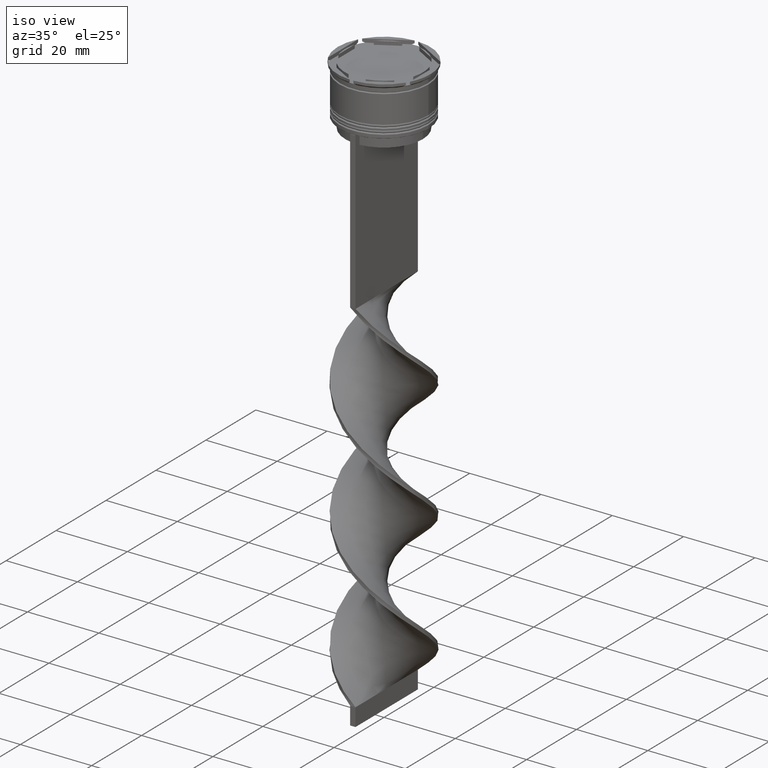
[diagram: clean part render]
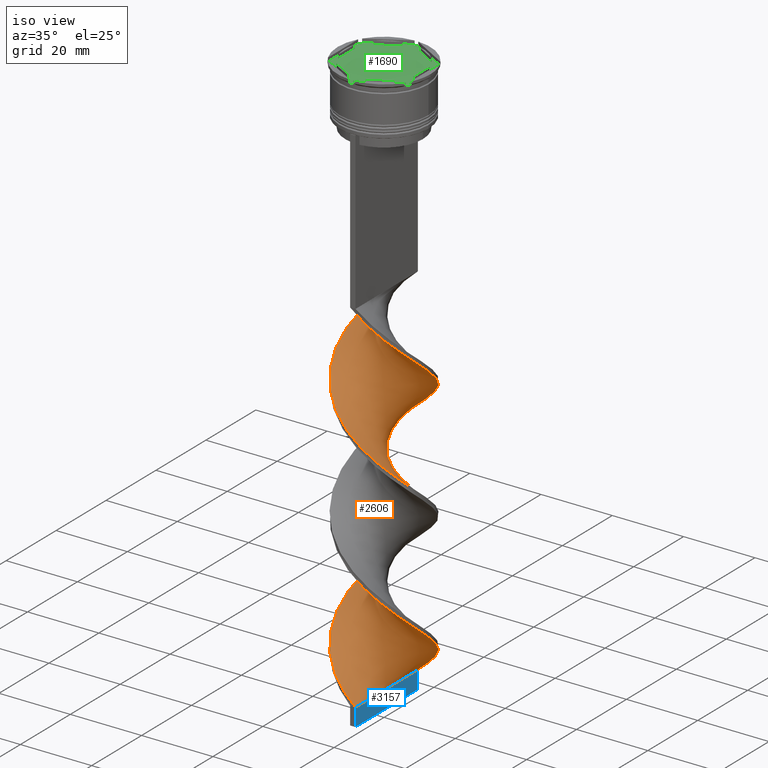
[diagram: same view with three faces highlighted in distinct colors, each labeled with its STEP entity id]
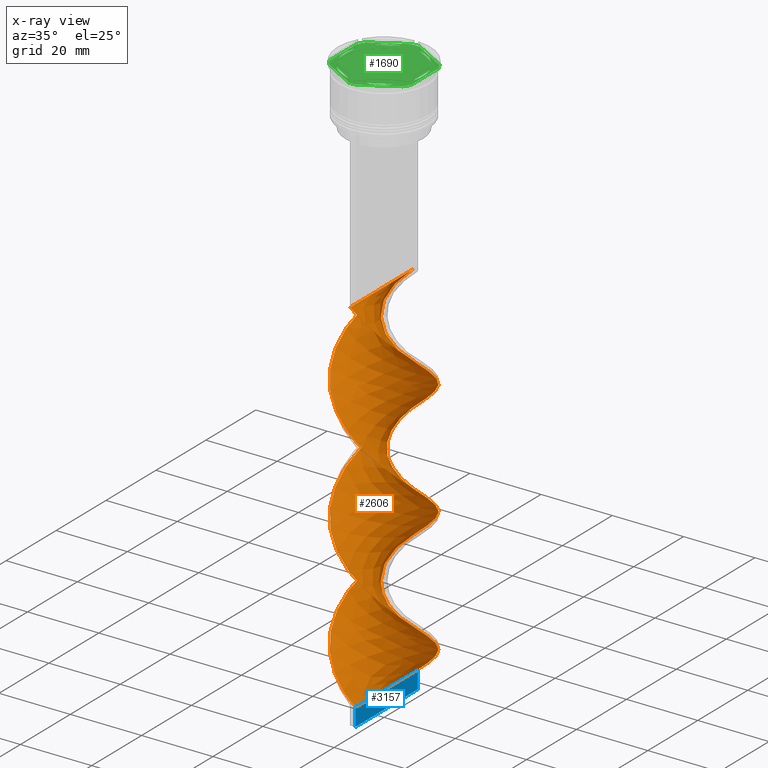
[diagram: x-ray of the same camera — body ghosted, the three highlighted faces saturated]
A machine part, iso view with three faces highlighted in distinct colors.
The next image is the same camera in x-ray (body ghosted, the three faces saturated) — at least one of them is partly hidden behind the body in this view.
Their STEP definitions:

[orange] entity #2606 — the highlighted face is a freeform B-spline surface patch.
#12 = CARTESIAN_POINT ( 'NONE',  ( 10.61168328023406637, 6.777681757703949650, -81.56666666666664867 ) ) ;
#15 = LINE ( 'NONE', #1223, #2618 ) ;
#21 = CARTESIAN_POINT ( 'NONE',  ( 3.332506835772350406, 12.07091124105925140, -89.42222222222223138 ) ) ;
#30 = CARTESIAN_POINT ( 'NONE',  ( 12.11996919947063134, -3.149420042465480130, -105.1333333333333400 ) ) ;
#39 = CARTESIAN_POINT ( 'NONE',  ( 3.166767928522319586, -12.18672937812252499, -61.36666666666666003 ) ) ;
#51 = CARTESIAN_POINT ( 'NONE',  ( 12.45098658456436169, -1.875559948311570357, -106.2555555555555742 ) ) ;
#59 = CARTESIAN_POINT ( 'NONE',  ( 9.791158273236575837, 7.806773960377678456, -150.0222222222222115 ) ) ;
#67 = CARTESIAN_POINT ( 'NONE',  ( 12.45098658456436169, -1.875559948311570135, -106.2555555555555742 ) ) ;
#69 = CARTESIAN_POINT ( 'NONE',  ( -12.11996919947063134, 3.149420042465478353, -138.8000000000000114 ) ) ;
#78 = CARTESIAN_POINT ( 'NONE',  ( 11.65644370790820794, -4.576004816908208817, -138.8000000000000114 ) ) ;
#90 = VERTEX_POINT ( 'NONE', #2614 ) ;
#93 = CARTESIAN_POINT ( 'NONE',  ( 9.725148873555950146, 7.997891686931350996, -115.2333333333333343 ) ) ;
#96 = CARTESIAN_POINT ( 'NONE',  ( -0.5638029408209594973, -12.57882817644925844, -157.8777777777777942 ) ) ;
#104 = CARTESIAN_POINT ( 'NONE',  ( -11.78895181437690454, -4.423280136619386127, -112.9888888888888943 ) ) ;
#116 = CARTESIAN_POINT ( 'NONE',  ( -12.11996919947063134, 3.149420042465478353, -138.8000000000000114 ) ) ;
#123 = CARTESIAN_POINT ( 'NONE',  ( 9.725148873555946594, -7.997891686931353661, -135.4333333333333371 ) ) ;
#128 = CARTESIAN_POINT ( 'NONE',  ( 10.45031754730548279, -6.899519052838330779, -136.5555555555555713 ) ) ;
#134 = CARTESIAN_POINT ( 'NONE',  ( 1.865285434671644538, 12.38277877728589083, -123.0888888888888886 ) ) ;
#142 = CARTESIAN_POINT ( 'NONE',  ( -7.849775853840625039, -9.845090710256194200, -83.81111111111111711 ) ) ;
#147 = CARTESIAN_POINT ( 'NONE',  ( 6.937523532635174739, 10.50788081788355832, -153.3888888888889142 ) ) ;
#154 = CARTESIAN_POINT ( 'NONE',  ( -9.725148873555948370, -7.997891686931350996, -148.8999999999999488 ) ) ;
#166 = VERTEX_POINT ( 'NONE', #186 ) ;
#186 = CARTESIAN_POINT ( 'NONE',  ( 0.7500000000000013323, 12.50000000000000000, -159.0000000000000000 ) ) ;
#259 = CARTESIAN_POINT ( 'NONE',  ( -12.50992003955415832, -0.5607143693194575063, -109.6222222222222342 ) ) ;
#264 = CARTESIAN_POINT ( 'NONE',  ( -12.45098658456436169, -1.875559948311554592, -110.7444444444444542 ) ) ;
#265 = ORIENTED_EDGE ( 'NONE', *, *, #1068, .F. ) ;
#271 = CARTESIAN_POINT ( 'NONE',  ( -8.787462363698287149, -8.921491198593770378, -82.68888888888889710 ) ) ;
#279 = CARTESIAN_POINT ( 'NONE',  ( 0.7500000000000013323, 12.50000000000000000, -91.66666666666667140 ) ) ;
#287 = CARTESIAN_POINT ( 'NONE',  ( 2.063802940820959275, 12.42117182355074334, -90.54444444444445139 ) ) ;
#295 = CARTESIAN_POINT ( 'NONE',  ( 6.937523532635167633, -10.50788081788356543, -97.27777777777779988 ) ) ;
#304 = CARTESIAN_POINT ( 'NONE',  ( -10.45031754730548101, 6.899519052838334332, -102.8888888888888857 ) ) ;
#309 = CARTESIAN_POINT ( 'NONE',  ( -12.50992003955415832, -0.5607143693194575063, -109.6222222222222342 ) ) ;
#316 = CARTESIAN_POINT ( 'NONE',  ( -12.11996919947063134, 3.149420042465478353, -71.46666666666668277 ) ) ;
#324 = CARTESIAN_POINT ( 'NONE',  ( 3.332506835772350406, 12.07091124105925140, -89.42222222222223138 ) ) ;
#330 = CARTESIAN_POINT ( 'NONE',  ( 11.17548622105502076, -5.801146418745307898, -70.34444444444444855 ) ) ;
#335 = CARTESIAN_POINT ( 'NONE',  ( -5.631329961908789983, -11.26201202755619946, -153.3888888888889142 ) ) ;
#342 = CARTESIAN_POINT ( 'NONE',  ( 11.65644370790820794, -4.576004816908208817, -71.46666666666668277 ) ) ;
#350 = CARTESIAN_POINT ( 'NONE',  ( 0.7500000000000013323, 12.50000000000000000, -91.66666666666667140 ) ) ;
#357 = EDGE_CURVE ( 'NONE', #1228, #3834, #15, .T. ) ;
#359 = CARTESIAN_POINT ( 'NONE',  ( 11.17548622105502254, 5.801146418745299904, -112.9888888888888943 ) ) ;
#368 = CARTESIAN_POINT ( 'NONE',  ( 0.7500000000000013323, 12.50000000000000000, -159.0000000000000000 ) ) ;
#373 = CARTESIAN_POINT ( 'NONE',  ( 4.601210730723738429, 11.72065065856775767, -155.6333333333333542 ) ) ;
#378 = CARTESIAN_POINT ( 'NONE',  ( 10.61168328023406637, -6.777681757703953203, -101.7666666666666515 ) ) ;
#388 = CARTESIAN_POINT ( 'NONE',  ( 10.45031754730548279, -6.899519052838330779, -136.5555555555555713 ) ) ;
#393 = CARTESIAN_POINT ( 'NONE',  ( 4.399048945215551676, -11.72437070283936222, -129.8222222222222229 ) ) ;
#398 = CARTESIAN_POINT ( 'NONE',  ( -12.45098658456435992, 1.875559948311566361, -139.9222222222222172 ) ) ;
#399 = CARTESIAN_POINT ( 'NONE',  ( -10.61168328023406637, 6.777681757703951426, -135.4333333333333371 ) ) ;
#407 = CARTESIAN_POINT ( 'NONE',  ( -9.791158273236570508, 7.806773960377682897, -66.97777777777777430 ) ) ;
#412 = CARTESIAN_POINT ( 'NONE',  ( 7.954078399437126023, 9.671873490467488566, -152.2666666666666799 ) ) ;
#419 = CARTESIAN_POINT ( 'NONE',  ( 12.11996919947063134, -3.149420042465480130, -105.1333333333333400 ) ) ;
#432 = CARTESIAN_POINT ( 'NONE',  ( -6.937523532635171186, 10.50788081788356187, -63.61111111111111427 ) ) ;
#443 = CARTESIAN_POINT ( 'NONE',  ( -4.399048945215555229, -11.72437070283936045, -154.5111111111111200 ) ) ;
#451 = CARTESIAN_POINT ( 'NONE',  ( -4.601210730723740205, -11.72065065856775945, -121.9666666666666544 ) ) ;
#454 = B_SPLINE_CURVE_WITH_KNOTS ( 'NONE', 3,
 ( #3863, #3545, #1638, #1659 ),
 .UNSPECIFIED., .F., .F.,
 ( 4, 4 ),
 ( 0.000000000000000000, 1.000000000000000000 ),
 .UNSPECIFIED. ) ;
#461 = CARTESIAN_POINT ( 'NONE',  ( -12.35312734465267859, -2.052497212371871438, -143.2888888888889198 ) ) ;
#586 = CARTESIAN_POINT ( 'NONE',  ( -12.50992003955415655, 0.5607143693194662770, -73.71111111111112280 ) ) ;
#593 = CARTESIAN_POINT ( 'NONE',  ( 6.740552907874703514, -10.55355136890619860, -64.73333333333333428 ) ) ;
#598 = CARTESIAN_POINT ( 'NONE',  ( 9.791158273236575837, 7.806773960377678456, -82.68888888888889710 ) ) ;
#600 = CARTESIAN_POINT ( 'NONE',  ( -0.7499999999999997780, 12.50000000000000000, -58.00000000000000000 ) ) ;
#608 = CARTESIAN_POINT ( 'NONE',  ( -6.740552907874705291, -10.55355136890619683, -84.93333333333333712 ) ) ;
#616 = CARTESIAN_POINT ( 'NONE',  ( 12.13740119476140045, -3.350863215071111068, -72.58888888888890278 ) ) ;
#624 = CARTESIAN_POINT ( 'NONE',  ( -10.45031754730548101, 6.899519052838334332, -102.8888888888888857 ) ) ;
#633 = CARTESIAN_POINT ( 'NONE',  ( -10.61168328023406637, 6.777681757703951426, -68.10000000000000853 ) ) ;
#640 = CARTESIAN_POINT ( 'NONE',  ( 4.399048945215551676, -11.72437070283936222, -62.48888888888889426 ) ) ;
#645 = CARTESIAN_POINT ( 'NONE',  ( 12.56885349454395495, -0.7541312096726379144, -74.83333333333332860 ) ) ;
#652 = CARTESIAN_POINT ( 'NONE',  ( 0.5638029408209667137, 12.57882817644925844, -124.2111111111111370 ) ) ;
#661 = CARTESIAN_POINT ( 'NONE',  ( 11.78895181437690276, 4.423280136619390568, -79.32222222222222285 ) ) ;
#666 = CARTESIAN_POINT ( 'NONE',  ( -11.20031754730548634, -5.600480947161663003, -114.1111111111111285 ) ) ;
#672 = CARTESIAN_POINT ( 'NONE',  ( -6.740552907874705291, -10.55355136890619683, -152.2666666666666799 ) ) ;
#679 = CARTESIAN_POINT ( 'NONE',  ( -9.791158273236577614, -7.806773960377676680, -116.3555555555555685 ) ) ;
#696 = CARTESIAN_POINT ( 'NONE',  ( -11.20031754730548279, 5.600480947161673662, -136.5555555555555713 ) ) ;
#705 = CARTESIAN_POINT ( 'NONE',  ( -12.13740119476140045, -3.350863215071107515, -77.07777777777778283 ) ) ;
#711 = CARTESIAN_POINT ( 'NONE',  ( 2.063802940820959275, 12.42117182355074334, -157.8777777777777942 ) ) ;
#717 = CARTESIAN_POINT ( 'NONE',  ( 4.399048945215562334, 11.72437070283935689, -120.8444444444444485 ) ) ;
#718 = CARTESIAN_POINT ( 'NONE',  ( 12.50992003955415832, -0.5607143693194732714, -107.3777777777777942 ) ) ;
#725 = CARTESIAN_POINT ( 'NONE',  ( -7.954078399437124247, 9.671873490467490342, -64.73333333333333428 ) ) ;
#729 = CARTESIAN_POINT ( 'NONE',  ( 11.17548622105502076, -5.801146418745307898, -137.6777777777777487 ) ) ;
#734 = CARTESIAN_POINT ( 'NONE',  ( -3.166767928522321363, -12.18672937812252499, -155.6333333333333258 ) ) ;
#745 = CARTESIAN_POINT ( 'NONE',  ( -12.56885349454395495, -0.7541312096726363601, -74.83333333333334281 ) ) ;
#756 = CARTESIAN_POINT ( 'NONE',  ( -3.332506835772345077, 12.07091124105925317, -127.5777777777777828 ) ) ;
#769 = CARTESIAN_POINT ( 'NONE',  ( 5.631329961908785542, -11.26201202755620123, -130.9444444444444287 ) ) ;
#774 = CARTESIAN_POINT ( 'NONE',  ( 0.7500000000000013323, 12.50000000000000000, -159.0000000000000000 ) ) ;
#779 = CARTESIAN_POINT ( 'NONE',  ( 4.601210730723735765, -11.72065065856776123, -95.03333333333331723 ) ) ;
#795 = CARTESIAN_POINT ( 'NONE',  ( -11.78895181437690276, 4.423280136619394121, -137.6777777777777487 ) ) ;
#818 = CARTESIAN_POINT ( 'NONE',  ( -6.937523532635170298, 10.50788081788356187, -63.61111111111112137 ) ) ;
#854 = CARTESIAN_POINT ( 'NONE',  ( -0.7499999999999997780, 12.50000000000000000, -58.00000000000000000 ) ) ;
#887 = CARTESIAN_POINT ( 'NONE',  ( -7.849775853840618822, 9.845090710256195976, -99.52222222222223991 ) ) ;
#894 = CARTESIAN_POINT ( 'NONE',  ( 10.45031754730548279, -6.899519052838330779, -69.22222222222222854 ) ) ;
#900 = CARTESIAN_POINT ( 'NONE',  ( -11.65644370790820972, -4.576004816908207040, -78.20000000000000284 ) ) ;
#912 = CARTESIAN_POINT ( 'NONE',  ( 12.50992003955415832, 0.5607143693194618361, -75.95555555555554861 ) ) ;
#919 = CARTESIAN_POINT ( 'NONE',  ( -4.399048945215555229, -11.72437070283936045, -87.17777777777779136 ) ) ;
#931 = CARTESIAN_POINT ( 'NONE',  ( 11.20031754730548457, 5.600480947161669221, -80.44444444444445708 ) ) ;
#939 = CARTESIAN_POINT ( 'NONE',  ( -1.865285434671642761, -12.38277877728589083, -89.42222222222223138 ) ) ;
#946 = CARTESIAN_POINT ( 'NONE',  ( 9.791158273236575837, 7.806773960377678456, -82.68888888888889710 ) ) ;
#954 = CARTESIAN_POINT ( 'NONE',  ( 4.601210730723738429, 11.72065065856775767, -88.29999999999998295 ) ) ;
#966 = CARTESIAN_POINT ( 'NONE',  ( -7.954078399437124247, 9.671873490467490342, -132.0666666666666629 ) ) ;
#974 = CARTESIAN_POINT ( 'NONE',  ( -1.865285434671634324, 12.38277877728589260, -93.91111111111111143 ) ) ;
#980 = CARTESIAN_POINT ( 'NONE',  ( -11.17548622105501721, 5.801146418745314115, -104.0111111111111057 ) ) ;
#995 = CARTESIAN_POINT ( 'NONE',  ( -5.769367131679462801, -11.11426573822565622, -120.8444444444444485 ) ) ;
#1001 = CARTESIAN_POINT ( 'NONE',  ( 11.20031754730548457, 5.600480947161669221, -147.7777777777777715 ) ) ;
#1006 = CARTESIAN_POINT ( 'NONE',  ( -11.78895181437690276, 4.423280136619393232, -137.6777777777777487 ) ) ;
#1016 = CARTESIAN_POINT ( 'NONE',  ( 12.35312734465267681, -2.052497212371875435, -141.0444444444444514 ) ) ;
#1029 = CARTESIAN_POINT ( 'NONE',  ( -6.937523532635171186, 10.50788081788356187, -130.9444444444444287 ) ) ;
#1031 = CARTESIAN_POINT ( 'NONE',  ( -12.13740119476140045, -3.350863215071107515, -144.4111111111111256 ) ) ;
#1040 = CARTESIAN_POINT ( 'NONE',  ( 7.849775853840622375, -9.845090710256195976, -133.1888888888889255 ) ) ;
#1045 = CARTESIAN_POINT ( 'NONE',  ( 8.970633266239079973, 8.835866163051411704, -151.1444444444444457 ) ) ;
#1051 = CARTESIAN_POINT ( 'NONE',  ( -9.791158273236570508, 7.806773960377682897, -134.3111111111111313 ) ) ;
#1053 = CARTESIAN_POINT ( 'NONE',  ( -7.849775853840625039, -9.845090710256192423, -151.1444444444444457 ) ) ;
#1059 = CARTESIAN_POINT ( 'NONE',  ( 11.20031754730548457, 5.600480947161669221, -147.7777777777777715 ) ) ;
#1062 = CARTESIAN_POINT ( 'NONE',  ( 9.791158273236575837, 7.806773960377678456, -150.0222222222222115 ) ) ;
#1067 = CARTESIAN_POINT ( 'NONE',  ( 11.78895181437689743, -4.423280136619401226, -104.0111111111111200 ) ) ;
#1068 = EDGE_CURVE ( 'NONE', #166, #90, #454, .T. ) ;
#1076 = CARTESIAN_POINT ( 'NONE',  ( 3.332506835772350406, 12.07091124105925140, -156.7555555555555600 ) ) ;
#1081 = CARTESIAN_POINT ( 'NONE',  ( 10.61168328023406460, 6.777681757703949650, -148.8999999999999773 ) ) ;
#1089 = CARTESIAN_POINT ( 'NONE',  ( -4.399048945215555229, -11.72437070283936045, -87.17777777777779136 ) ) ;
#1100 = CARTESIAN_POINT ( 'NONE',  ( -6.740552907874705291, -10.55355136890619683, -84.93333333333333712 ) ) ;
#1113 = CARTESIAN_POINT ( 'NONE',  ( -11.20031754730548279, 5.600480947161673662, -136.5555555555555713 ) ) ;
#1127 = CARTESIAN_POINT ( 'NONE',  ( 0.7499999999999983347, -12.50000000000000000, -159.0000000000000000 ) ) ;
#1132 = CARTESIAN_POINT ( 'NONE',  ( -5.769367131679452143, 11.11426573822566155, -62.48888888888889426 ) ) ;
#1169 = ORIENTED_EDGE ( 'NONE', *, *, #2014, .T. ) ;
#1223 = CARTESIAN_POINT ( 'NONE',  ( -0.7499999999999997780, -12.50000000000000000, -58.00000000000000000 ) ) ;
#1227 = CARTESIAN_POINT ( 'NONE',  ( -6.937523532635175627, -10.50788081788355832, -119.7222222222222143 ) ) ;
#1228 = VERTEX_POINT ( 'NONE', #1436 ) ;
#1233 = CARTESIAN_POINT ( 'NONE',  ( -8.970633266239078196, 8.835866163051415256, -65.85555555555555429 ) ) ;
#1240 = CARTESIAN_POINT ( 'NONE',  ( -4.399048945215547235, 11.72437070283936222, -96.15555555555556566 ) ) ;
#1247 = CARTESIAN_POINT ( 'NONE',  ( -1.865285434671634324, 12.38277877728589260, -93.91111111111111143 ) ) ;
#1253 = CARTESIAN_POINT ( 'NONE',  ( 3.332506835772342857, -12.07091124105925317, -93.91111111111111143 ) ) ;
#1267 = CARTESIAN_POINT ( 'NONE',  ( 11.65644370790820794, -4.576004816908208817, -71.46666666666668277 ) ) ;
#1274 = CARTESIAN_POINT ( 'NONE',  ( -0.7499999999999997780, 12.50000000000000000, -125.3333333333333570 ) ) ;
#1282 = CARTESIAN_POINT ( 'NONE',  ( -3.166767928522318254, 12.18672937812252677, -95.03333333333331723 ) ) ;
#1289 = CARTESIAN_POINT ( 'NONE',  ( -12.13740119476139867, 3.350863215071115508, -106.2555555555555742 ) ) ;
#1299 = CARTESIAN_POINT ( 'NONE',  ( -9.725148873555948370, -7.997891686931350108, -148.8999999999999773 ) ) ;
#1305 = CARTESIAN_POINT ( 'NONE',  ( -3.332506835772345077, 12.07091124105925317, -60.24444444444444713 ) ) ;
#1311 = CARTESIAN_POINT ( 'NONE',  ( 3.166767928522319586, -12.18672937812252322, -61.36666666666666003 ) ) ;
#1318 = CARTESIAN_POINT ( 'NONE',  ( 12.13740119476140222, 3.350863215071099965, -110.7444444444444542 ) ) ;
#1326 = CARTESIAN_POINT ( 'NONE',  ( 5.769367131679455696, 11.11426573822565977, -154.5111111111111200 ) ) ;
#1333 = CARTESIAN_POINT ( 'NONE',  ( 9.725148873555948370, -7.997891686931351884, -135.4333333333333371 ) ) ;
#1337 = CARTESIAN_POINT ( 'NONE',  ( 11.65644370790820972, 4.576004816908206152, -111.8666666666666742 ) ) ;
#1339 = CARTESIAN_POINT ( 'NONE',  ( -8.787462363698287149, -8.921491198593770378, -150.0222222222222115 ) ) ;
#1347 = CARTESIAN_POINT ( 'NONE',  ( -12.45098658456436169, -1.875559948311554814, -110.7444444444444542 ) ) ;
#1363 = CARTESIAN_POINT ( 'NONE',  ( 0.5638029408209667137, 12.57882817644926021, -124.2111111111111370 ) ) ;
#1374 = CARTESIAN_POINT ( 'NONE',  ( 11.17548622105502254, -5.801146418745307010, -137.6777777777777487 ) ) ;
#1379 = CARTESIAN_POINT ( 'NONE',  ( -2.063802940820966381, -12.42117182355074334, -124.2111111111111370 ) ) ;
#1385 = CARTESIAN_POINT ( 'NONE',  ( -12.56885349454395495, -0.7541312096726363601, -142.1666666666666856 ) ) ;
#1392 = CARTESIAN_POINT ( 'NONE',  ( -12.11996919947063134, 3.149420042465478353, -71.46666666666668277 ) ) ;
#1395 = CARTESIAN_POINT ( 'NONE',  ( 11.65644370790820794, -4.576004816908208817, -138.8000000000000114 ) ) ;
#1401 = CARTESIAN_POINT ( 'NONE',  ( 6.937523532635168522, -10.50788081788356543, -97.27777777777778567 ) ) ;
#1410 = CARTESIAN_POINT ( 'NONE',  ( -5.631329961908789983, -11.26201202755619768, -86.05555555555557135 ) ) ;
#1415 = CARTESIAN_POINT ( 'NONE',  ( 7.849775853840624151, -9.845090710256194200, -133.1888888888889255 ) ) ;
#1422 = CARTESIAN_POINT ( 'NONE',  ( 7.954078399437124247, -9.671873490467490342, -98.40000000000001990 ) ) ;
#1436 = CARTESIAN_POINT ( 'NONE',  ( -0.7499999999999997780, -12.50000000000000000, -58.00000000000000000 ) ) ;
#1535 = CARTESIAN_POINT ( 'NONE',  ( 5.631329961908785542, -11.26201202755620479, -63.61111111111112137 ) ) ;
#1545 = CARTESIAN_POINT ( 'NONE',  ( -9.725148873555948370, -7.997891686931350108, -81.56666666666666288 ) ) ;
#1561 = CARTESIAN_POINT ( 'NONE',  ( -0.5638029408209508375, 12.57882817644926199, -92.78888888888889142 ) ) ;
#1568 = CARTESIAN_POINT ( 'NONE',  ( -9.791158273236570508, 7.806773960377682897, -66.97777777777777430 ) ) ;
#1576 = CARTESIAN_POINT ( 'NONE',  ( -12.35312734465267503, 2.052497212371882540, -107.3777777777777942 ) ) ;
#1583 = CARTESIAN_POINT ( 'NONE',  ( 1.865285434671637432, -12.38277877728589260, -60.24444444444444713 ) ) ;
#1594 = CARTESIAN_POINT ( 'NONE',  ( -0.5638029408209509485, 12.57882817644926376, -92.78888888888889142 ) ) ;
#1601 = CARTESIAN_POINT ( 'NONE',  ( -7.849775853840619710, 9.845090710256194200, -99.52222222222223991 ) ) ;
#1609 = CARTESIAN_POINT ( 'NONE',  ( -3.166767928522320918, -12.18672937812252322, -155.6333333333333542 ) ) ;
#1617 = CARTESIAN_POINT ( 'NONE',  ( 0.5638029408209559445, -12.57882817644926021, -59.12222222222222712 ) ) ;
#1627 = CARTESIAN_POINT ( 'NONE',  ( -9.725148873555946594, 7.997891686931353661, -101.7666666666666515 ) ) ;
#1638 = CARTESIAN_POINT ( 'NONE',  ( 0.7499999999999992228, -4.166666666666667851, -159.0000000000000000 ) ) ;
#1640 = CARTESIAN_POINT ( 'NONE',  ( -1.865285434671642761, -12.38277877728589083, -156.7555555555555600 ) ) ;
#1647 = CARTESIAN_POINT ( 'NONE',  ( -11.20031754730548279, 5.600480947161673662, -69.22222222222222854 ) ) ;
#1656 = CARTESIAN_POINT ( 'NONE',  ( -3.166767928522321363, -12.18672937812252499, -88.29999999999998295 ) ) ;
#1659 = CARTESIAN_POINT ( 'NONE',  ( 0.7499999999999983347, -12.50000000000000000, -159.0000000000000000 ) ) ;
#1660 = CARTESIAN_POINT ( 'NONE',  ( -12.56885349454395495, -0.7541312096726363601, -142.1666666666666856 ) ) ;
#1668 = CARTESIAN_POINT ( 'NONE',  ( -8.970633266239085302, -8.835866163051408151, -117.4777777777777885 ) ) ;
#1679 = CARTESIAN_POINT ( 'NONE',  ( -10.45031754730548457, -6.899519052838326338, -147.7777777777777715 ) ) ;
#1680 = CARTESIAN_POINT ( 'NONE',  ( 6.740552907874707067, 10.55355136890619860, -118.6000000000000085 ) ) ;
#1691 = CARTESIAN_POINT ( 'NONE',  ( -10.61168328023406815, 6.777681757703951426, -68.10000000000002274 ) ) ;
#1694 = CARTESIAN_POINT ( 'NONE',  ( 3.332506835772350406, 12.07091124105925140, -156.7555555555555600 ) ) ;
#1700 = CARTESIAN_POINT ( 'NONE',  ( 8.970633266239074644, -8.835866163051417033, -99.52222222222223991 ) ) ;
#1702 = CARTESIAN_POINT ( 'NONE',  ( 12.35312734465267859, 2.052497212371866997, -109.6222222222222342 ) ) ;
#1711 = CARTESIAN_POINT ( 'NONE',  ( -8.970633266239078196, 8.835866163051415256, -65.85555555555555429 ) ) ;
#1716 = CARTESIAN_POINT ( 'NONE',  ( 1.865285434671637432, -12.38277877728589260, -127.5777777777777828 ) ) ;
#1721 = CARTESIAN_POINT ( 'NONE',  ( 0.7499999999999983347, -12.50000000000000000, -91.66666666666667140 ) ) ;
#1730 = CARTESIAN_POINT ( 'NONE',  ( -11.17548622105502254, -5.801146418745303457, -79.32222222222222285 ) ) ;
#1735 = CARTESIAN_POINT ( 'NONE',  ( 6.740552907874703514, -10.55355136890619860, -132.0666666666666629 ) ) ;
#1742 = CARTESIAN_POINT ( 'NONE',  ( 5.769367131679449479, -11.11426573822566510, -96.15555555555556566 ) ) ;
#1808 = EDGE_LOOP ( 'NONE', ( #3048, #1169, #265, #2811 ) ) ;
#1848 = CARTESIAN_POINT ( 'NONE',  ( -2.063802940820955723, 12.42117182355074334, -59.12222222222222712 ) ) ;
#1855 = CARTESIAN_POINT ( 'NONE',  ( 5.769367131679455696, 11.11426573822565977, -87.17777777777779136 ) ) ;
#1865 = CARTESIAN_POINT ( 'NONE',  ( -10.45031754730548457, -6.899519052838326338, -80.44444444444445708 ) ) ;
#1872 = CARTESIAN_POINT ( 'NONE',  ( 7.849775853840622375, -9.845090710256195976, -65.85555555555555429 ) ) ;
#1877 = CARTESIAN_POINT ( 'NONE',  ( 5.769367131679455696, 11.11426573822565977, -87.17777777777779136 ) ) ;
#1887 = CARTESIAN_POINT ( 'NONE',  ( 4.601210730723734876, -11.72065065856775945, -95.03333333333331723 ) ) ;
#1895 = CARTESIAN_POINT ( 'NONE',  ( 12.50992003955415832, 0.5607143693194618361, -75.95555555555554861 ) ) ;
#1902 = CARTESIAN_POINT ( 'NONE',  ( -11.65644370790820794, 4.576004816908209705, -105.1333333333333400 ) ) ;
#1909 = CARTESIAN_POINT ( 'NONE',  ( -11.20031754730548279, 5.600480947161673662, -69.22222222222222854 ) ) ;
#1923 = CARTESIAN_POINT ( 'NONE',  ( -6.740552907874702626, 10.55355136890619860, -98.40000000000001990 ) ) ;
#1929 = CARTESIAN_POINT ( 'NONE',  ( -12.45098658456435992, 1.875559948311566139, -139.9222222222222172 ) ) ;
#1937 = CARTESIAN_POINT ( 'NONE',  ( -11.65644370790820794, 4.576004816908209705, -105.1333333333333400 ) ) ;
#1944 = CARTESIAN_POINT ( 'NONE',  ( -10.61168328023406637, -6.777681757703947873, -115.2333333333333343 ) ) ;
#1952 = CARTESIAN_POINT ( 'NONE',  ( 11.78895181437689743, -4.423280136619400338, -104.0111111111111057 ) ) ;
#1960 = CARTESIAN_POINT ( 'NONE',  ( 3.166767928522319586, -12.18672937812252499, -128.6999999999999886 ) ) ;
#1978 = CARTESIAN_POINT ( 'NONE',  ( -11.65644370790820972, -4.576004816908207040, -145.5333333333333599 ) ) ;
#1985 = CARTESIAN_POINT ( 'NONE',  ( 2.063802940820959275, 12.42117182355074334, -157.8777777777777942 ) ) ;
#1990 = CARTESIAN_POINT ( 'NONE',  ( 5.769367131679455696, 11.11426573822565977, -154.5111111111111200 ) ) ;
#1995 = CARTESIAN_POINT ( 'NONE',  ( 3.166767928522322695, 12.18672937812252499, -121.9666666666666544 ) ) ;
#1997 = CARTESIAN_POINT ( 'NONE',  ( -12.35312734465267859, -2.052497212371871438, -143.2888888888889198 ) ) ;
#2004 = CARTESIAN_POINT ( 'NONE',  ( 12.45098658456435992, 1.875559948311562142, -144.4111111111111541 ) ) ;
#2014 = EDGE_CURVE ( 'NONE', #3834, #90, #2738, .T. ) ;
#2015 = CARTESIAN_POINT ( 'NONE',  ( 12.13740119476140222, 3.350863215071099965, -110.7444444444444542 ) ) ;
#2016 = CARTESIAN_POINT ( 'NONE',  ( 0.7499999999999983347, -12.50000000000000000, -159.0000000000000000 ) ) ;
#2025 = CARTESIAN_POINT ( 'NONE',  ( -12.11996919947063311, -3.149420042465475689, -111.8666666666666742 ) ) ;
#2038 =( BOUNDED_SURFACE ( )  B_SPLINE_SURFACE ( 1, 2, ( 
 ( #2855, #1617, #2251, #39, #640, #4136, #593, #1872, #2810, #4094, #2186, #2228, #342, #616, #2899, #2566, #1895, #3462, #2541, #661, #2479, #12, #946, #3192, #3144, #2168, #1855, #3806, #324, #4119, #279, #1594, #974, #1282, #1240, #2524, #3763, #887, #3851, #3826, #304, #3533, #1937, #3481, #1576, #3127, #259, #1347, #2025, #104, #3004, #2628, #679, #1668, #3872, #3932, #995, #451, #2985, #3952, #3621, #3643, #3913, #1960, #2586, #769, #3280, #1040, #2272, #123, #388, #1374, #78, #3554, #1016, #2051, #2294, #2004, #2319, #2649, #1059, #2920, #59, #2339, #3578, #3235, #1326, #2964, #1076, #1985, #368 ),
 ( #3303, #3325, #1305, #3600, #2607, #432, #725, #1711, #407, #1691, #1647, #3889, #1392, #2666, #3258, #745, #2360, #705, #2939, #1730, #3974, #2685, #2383, #142, #1100, #1410, #1089, #1656, #3609, #2976, #1721, #2929, #2392, #779, #1742, #1401, #1422, #1700, #3902, #378, #2697, #1067, #419, #67, #2061, #2330, #3315, #2015, #1337, #2951, #3986, #93, #3943, #3290, #2039, #2996, #717, #1995, #134, #1363, #2617, #3270, #756, #3014, #3925, #1029, #2372, #2310, #1051, #3656, #1113, #795, #116, #398, #3335, #1385, #461, #2658, #2348, #3249, #1679, #154, #3674, #3592, #2642, #3631, #443, #734, #2675, #3962, #1127 ) ),
 .UNSPECIFIED., .F., .F., .F. ) 
 B_SPLINE_SURFACE_WITH_KNOTS ( ( 2, 2 ),
 ( 3, 2, 2, 2, 2, 2, 2, 2, 2, 2, 2, 2, 2, 2, 2, 2, 2, 2, 2, 2, 2, 2, 2, 2, 2, 2, 2, 2, 2, 2, 2, 2, 2, 2, 2, 2, 2, 2, 2, 2, 2, 2, 2, 2, 2, 3 ),
 ( 0.000000000000000000, 1.000000000000000000 ),
 ( 0.000000000000000000, 0.01666666666666666644, 0.03333333333333333287, 0.05000000000000000278, 0.06666666666666666574, 0.08333333333333332871, 0.1000000000000000056, 0.1166666666666666685, 0.1333333333333333315, 0.1499999999999999944, 0.1666666666666666574, 0.1833333333333333204, 0.2000000000000000111, 0.2166666666666666741, 0.2333333333333333370, 0.2500000000000000000, 0.2666666666666666630, 0.2833333333333333259, 0.2999999999999999889, 0.3166666666666666519, 0.3333333333333333148, 0.3499999999999999778, 0.3666666666666666408, 0.3833333333333333592, 0.4000000000000000222, 0.4166666666666666852, 0.4333333333333333481, 0.4500000000000000111, 0.4666666666666666741, 0.4833333333333333370, 0.5000000000000000000, 0.5166666666666667185, 0.5333333333333333259, 0.5500000000000000444, 0.5666666666666666519, 0.5833333333333333703, 0.5999999999999999778, 0.6166666666666666963, 0.6333333333333333037, 0.6500000000000000222, 0.6666666666666666297, 0.6833333333333333481, 0.6999999999999999556, 0.7166666666666666741, 0.7333333333333332815, 0.7500000000000000000 ),
 .UNSPECIFIED. ) 
 GEOMETRIC_REPRESENTATION_ITEM ( )  RATIONAL_B_SPLINE_SURFACE ( (
 ( 1.000000000000000000, 0.9945218953682732899, 1.000000000000000000, 0.9945218953682732899, 1.000000000000000000, 0.9945218953682732899, 1.000000000000000000, 0.9945218953682732899, 1.000000000000000000, 0.9945218953682732899, 1.000000000000000000, 0.9945218953682732899, 1.000000000000000000, 0.9945218953682732899, 1.000000000000000000, 0.9945218953682732899, 1.000000000000000000, 0.9945218953682732899, 1.000000000000000000, 0.9945218953682732899, 1.000000000000000000, 0.9945218953682732899, 1.000000000000000000, 0.9945218953682732899, 1.000000000000000000, 0.9945218953682732899, 1.000000000000000000, 0.9945218953682732899, 1.000000000000000000, 0.9945218953682732899, 1.000000000000000000, 0.9945218953682732899, 1.000000000000000000, 0.9945218953682732899, 1.000000000000000000, 0.9945218953682732899, 1.000000000000000000, 0.9945218953682732899, 1.000000000000000000, 0.9945218953682732899, 1.000000000000000000, 0.9945218953682732899, 1.000000000000000000, 0.9945218953682732899, 1.000000000000000000, 0.9945218953682732899, 1.000000000000000000, 0.9945218953682732899, 1.000000000000000000, 0.9945218953682732899, 1.000000000000000000, 0.9945218953682732899, 1.000000000000000000, 0.9945218953682732899, 1.000000000000000000, 0.9945218953682732899, 1.000000000000000000, 0.9945218953682732899, 1.000000000000000000, 0.9945218953682732899, 1.000000000000000000, 0.9945218953682732899, 1.000000000000000000, 0.9945218953682732899, 1.000000000000000000, 0.9945218953682732899, 1.000000000000000000, 0.9945218953682732899, 1.000000000000000000, 0.9945218953682732899, 1.000000000000000000, 0.9945218953682732899, 1.000000000000000000, 0.9945218953682732899, 1.000000000000000000, 0.9945218953682732899, 1.000000000000000000, 0.9945218953682732899, 1.000000000000000000, 0.9945218953682732899, 1.000000000000000000, 0.9945218953682732899, 1.000000000000000000, 0.9945218953682732899, 1.000000000000000000, 0.9945218953682732899, 1.000000000000000000, 0.9945218953682732899, 1.000000000000000000, 0.9945218953682732899, 1.000000000000000000),
 ( 1.000000000000000000, 0.9945218953682732899, 1.000000000000000000, 0.9945218953682732899, 1.000000000000000000, 0.9945218953682732899, 1.000000000000000000, 0.9945218953682732899, 1.000000000000000000, 0.9945218953682732899, 1.000000000000000000, 0.9945218953682732899, 1.000000000000000000, 0.9945218953682732899, 1.000000000000000000, 0.9945218953682732899, 1.000000000000000000, 0.9945218953682732899, 1.000000000000000000, 0.9945218953682732899, 1.000000000000000000, 0.9945218953682732899, 1.000000000000000000, 0.9945218953682732899, 1.000000000000000000, 0.9945218953682732899, 1.000000000000000000, 0.9945218953682732899, 1.000000000000000000, 0.9945218953682732899, 1.000000000000000000, 0.9945218953682732899, 1.000000000000000000, 0.9945218953682732899, 1.000000000000000000, 0.9945218953682732899, 1.000000000000000000, 0.9945218953682732899, 1.000000000000000000, 0.9945218953682732899, 1.000000000000000000, 0.9945218953682732899, 1.000000000000000000, 0.9945218953682732899, 1.000000000000000000, 0.9945218953682732899, 1.000000000000000000, 0.9945218953682732899, 1.000000000000000000, 0.9945218953682732899, 1.000000000000000000, 0.9945218953682732899, 1.000000000000000000, 0.9945218953682732899, 1.000000000000000000, 0.9945218953682732899, 1.000000000000000000, 0.9945218953682732899, 1.000000000000000000, 0.9945218953682732899, 1.000000000000000000, 0.9945218953682732899, 1.000000000000000000, 0.9945218953682732899, 1.000000000000000000, 0.9945218953682732899, 1.000000000000000000, 0.9945218953682732899, 1.000000000000000000, 0.9945218953682732899, 1.000000000000000000, 0.9945218953682732899, 1.000000000000000000, 0.9945218953682732899, 1.000000000000000000, 0.9945218953682732899, 1.000000000000000000, 0.9945218953682732899, 1.000000000000000000, 0.9945218953682732899, 1.000000000000000000, 0.9945218953682732899, 1.000000000000000000, 0.9945218953682732899, 1.000000000000000000, 0.9945218953682732899, 1.000000000000000000, 0.9945218953682732899, 1.000000000000000000, 0.9945218953682732899, 1.000000000000000000) ) ) 
 REPRESENTATION_ITEM ( '' )  SURFACE ( )  );
#2039 = CARTESIAN_POINT ( 'NONE',  ( 6.740552907874707067, 10.55355136890619860, -118.6000000000000085 ) ) ;
#2051 = CARTESIAN_POINT ( 'NONE',  ( 12.56885349454395495, -0.7541312096726379144, -142.1666666666666856 ) ) ;
#2061 = CARTESIAN_POINT ( 'NONE',  ( 12.50992003955415832, -0.5607143693194732714, -107.3777777777777942 ) ) ;
#2168 = CARTESIAN_POINT ( 'NONE',  ( 6.937523532635175627, 10.50788081788355832, -86.05555555555557135 ) ) ;
#2179 = CARTESIAN_POINT ( 'NONE',  ( -11.17548622105502076, -5.801146418745304345, -79.32222222222222285 ) ) ;
#2186 = CARTESIAN_POINT ( 'NONE',  ( 10.45031754730548279, -6.899519052838330779, -69.22222222222222854 ) ) ;
#2192 = CARTESIAN_POINT ( 'NONE',  ( 11.78895181437690276, 4.423280136619390568, -79.32222222222222285 ) ) ;
#2198 = CARTESIAN_POINT ( 'NONE',  ( -3.166767928522320918, -12.18672937812252322, -88.29999999999998295 ) ) ;
#2209 = CARTESIAN_POINT ( 'NONE',  ( 10.61168328023406460, 6.777681757703949650, -81.56666666666666288 ) ) ;
#2219 = CARTESIAN_POINT ( 'NONE',  ( 10.61168328023406460, -6.777681757703953203, -101.7666666666666515 ) ) ;
#2228 = CARTESIAN_POINT ( 'NONE',  ( 11.17548622105502254, -5.801146418745307010, -70.34444444444443434 ) ) ;
#2236 = CARTESIAN_POINT ( 'NONE',  ( -0.7499999999999997780, -12.50000000000000000, -58.00000000000000000 ) ) ;
#2244 = CARTESIAN_POINT ( 'NONE',  ( 11.20031754730548101, -5.600480947161677214, -102.8888888888888857 ) ) ;
#2251 = CARTESIAN_POINT ( 'NONE',  ( 1.865285434671637432, -12.38277877728589260, -60.24444444444444713 ) ) ;
#2257 = CARTESIAN_POINT ( 'NONE',  ( -5.631329961908782877, 11.26201202755620479, -97.27777777777779988 ) ) ;
#2272 = CARTESIAN_POINT ( 'NONE',  ( 8.787462363698281820, -8.921491198593773930, -134.3111111111111313 ) ) ;
#2278 = CARTESIAN_POINT ( 'NONE',  ( -4.601210730723740205, -11.72065065856775767, -121.9666666666666544 ) ) ;
#2287 = CARTESIAN_POINT ( 'NONE',  ( -10.45031754730548457, -6.899519052838326338, -147.7777777777777715 ) ) ;
#2294 = CARTESIAN_POINT ( 'NONE',  ( 12.50992003955415832, 0.5607143693194618361, -143.2888888888889198 ) ) ;
#2310 = CARTESIAN_POINT ( 'NONE',  ( -8.970633266239078196, 8.835866163051415256, -133.1888888888889255 ) ) ;
#2312 = CARTESIAN_POINT ( 'NONE',  ( 4.399048945215562334, 11.72437070283935689, -120.8444444444444485 ) ) ;
#2319 = CARTESIAN_POINT ( 'NONE',  ( 12.11996919947063311, 3.149420042465477021, -145.5333333333333599 ) ) ;
#2330 = CARTESIAN_POINT ( 'NONE',  ( 12.56885349454395495, 0.7541312096726349168, -108.5000000000000000 ) ) ;
#2332 = CARTESIAN_POINT ( 'NONE',  ( 3.166767928522322695, 12.18672937812252322, -121.9666666666666544 ) ) ;
#2339 = CARTESIAN_POINT ( 'NONE',  ( 8.970633266239079973, 8.835866163051411704, -151.1444444444444457 ) ) ;
#2348 = CARTESIAN_POINT ( 'NONE',  ( -11.65644370790820972, -4.576004816908207040, -145.5333333333333599 ) ) ;
#2360 = CARTESIAN_POINT ( 'NONE',  ( -12.35312734465267859, -2.052497212371871438, -75.95555555555554861 ) ) ;
#2366 = CARTESIAN_POINT ( 'NONE',  ( -0.7499999999999997780, -12.50000000000000000, -125.3333333333333570 ) ) ;
#2372 = CARTESIAN_POINT ( 'NONE',  ( -7.954078399437124247, 9.671873490467490342, -132.0666666666666629 ) ) ;
#2383 = CARTESIAN_POINT ( 'NONE',  ( -8.787462363698287149, -8.921491198593770378, -82.68888888888889710 ) ) ;
#2392 = CARTESIAN_POINT ( 'NONE',  ( 3.332506835772342857, -12.07091124105925317, -93.91111111111111143 ) ) ;
#2479 = CARTESIAN_POINT ( 'NONE',  ( 11.20031754730548457, 5.600480947161669221, -80.44444444444445708 ) ) ;
#2506 = FACE_OUTER_BOUND ( 'NONE', #1808, .T. ) ;
#2512 = CARTESIAN_POINT ( 'NONE',  ( 8.787462363698281820, -8.921491198593773930, -66.97777777777777430 ) ) ;
#2517 = CARTESIAN_POINT ( 'NONE',  ( -11.78895181437690276, 4.423280136619393232, -70.34444444444444855 ) ) ;
#2524 = CARTESIAN_POINT ( 'NONE',  ( -5.631329961908782877, 11.26201202755620123, -97.27777777777778567 ) ) ;
#2536 = CARTESIAN_POINT ( 'NONE',  ( 9.791158273236570508, -7.806773960377686450, -100.6444444444444599 ) ) ;
#2541 = CARTESIAN_POINT ( 'NONE',  ( 12.11996919947063311, 3.149420042465477021, -78.20000000000000284 ) ) ;
#2548 = CARTESIAN_POINT ( 'NONE',  ( 8.970633266239079973, 8.835866163051411704, -83.81111111111111711 ) ) ;
#2558 = CARTESIAN_POINT ( 'NONE',  ( 10.45031754730548990, 6.899519052838320121, -114.1111111111111285 ) ) ;
#2566 = CARTESIAN_POINT ( 'NONE',  ( 12.56885349454395495, -0.7541312096726379144, -74.83333333333334281 ) ) ;
#2572 = CARTESIAN_POINT ( 'NONE',  ( 12.35312734465267681, -2.052497212371875435, -73.71111111111112280 ) ) ;
#2586 = CARTESIAN_POINT ( 'NONE',  ( 4.399048945215551676, -11.72437070283936222, -129.8222222222222229 ) ) ;
#2591 = CARTESIAN_POINT ( 'NONE',  ( 9.725148873555948370, -7.997891686931351884, -68.10000000000000853 ) ) ;
#2597 = CARTESIAN_POINT ( 'NONE',  ( 1.865285434671644538, 12.38277877728589083, -123.0888888888888886 ) ) ;
#2606 = ADVANCED_FACE ( 'NONE', ( #2506 ), #2038, .T. ) ;
#2607 = CARTESIAN_POINT ( 'NONE',  ( -5.769367131679452143, 11.11426573822566155, -62.48888888888889426 ) ) ;
#2613 = CARTESIAN_POINT ( 'NONE',  ( 12.50992003955415832, 0.5607143693194618361, -143.2888888888889198 ) ) ;
#2614 = CARTESIAN_POINT ( 'NONE',  ( 0.7499999999999983347, -12.50000000000000000, -159.0000000000000000 ) ) ;
#2617 = CARTESIAN_POINT ( 'NONE',  ( -0.7499999999999997780, 12.50000000000000000, -125.3333333333333570 ) ) ;
#2618 = VECTOR ( 'NONE', #4077, 1000.000000000000000 ) ;
#2621 = CARTESIAN_POINT ( 'NONE',  ( 9.725148873555950146, 7.997891686931350108, -115.2333333333333343 ) ) ;
#2628 = CARTESIAN_POINT ( 'NONE',  ( -10.61168328023406815, -6.777681757703947873, -115.2333333333333343 ) ) ;
#2636 = CARTESIAN_POINT ( 'NONE',  ( 12.13740119476140045, -3.350863215071111068, -139.9222222222222172 ) ) ;
#2642 = CARTESIAN_POINT ( 'NONE',  ( -6.740552907874705291, -10.55355136890619683, -152.2666666666666799 ) ) ;
#2643 = CARTESIAN_POINT ( 'NONE',  ( 5.631329961908790871, 11.26201202755619946, -119.7222222222222143 ) ) ;
#2649 = CARTESIAN_POINT ( 'NONE',  ( 11.78895181437690276, 4.423280136619390568, -146.6555555555555657 ) ) ;
#2658 = CARTESIAN_POINT ( 'NONE',  ( -12.13740119476140045, -3.350863215071107515, -144.4111111111111541 ) ) ;
#2666 = CARTESIAN_POINT ( 'NONE',  ( -12.45098658456435992, 1.875559948311566361, -72.58888888888890278 ) ) ;
#2670 = CARTESIAN_POINT ( 'NONE',  ( 12.45098658456435992, 1.875559948311562142, -144.4111111111111256 ) ) ;
#2675 = CARTESIAN_POINT ( 'NONE',  ( -1.865285434671642761, -12.38277877728589083, -156.7555555555555600 ) ) ;
#2685 = CARTESIAN_POINT ( 'NONE',  ( -9.725148873555948370, -7.997891686931350996, -81.56666666666664867 ) ) ;
#2697 = CARTESIAN_POINT ( 'NONE',  ( 11.20031754730548101, -5.600480947161677214, -102.8888888888888857 ) ) ;
#2721 = CARTESIAN_POINT ( 'NONE',  ( -3.332506835772345077, 12.07091124105925317, -60.24444444444444713 ) ) ;
#2738 =( BOUNDED_CURVE ( )  B_SPLINE_CURVE ( 2, ( #854, #1848, #2721, #3121, #1132, #818, #3137, #1233, #1568, #633, #1909, #2517, #316, #4111, #586, #3799, #3779, #3184, #900, #2179, #1865, #1545, #271, #2824, #608, #3819, #919, #2198, #939, #3455, #3474, #3500, #1253, #1887, #3160, #295, #2847, #4129, #2536, #2219, #2244, #1952, #30, #51, #718, #2931, #1702, #1318, #3524, #359, #2558, #2621, #3842, #3293, #1680, #2643, #2312, #2332, #2597, #652, #1274, #3905, #3613, #3883, #3226, #3570, #966, #3593, #2955, #399, #696, #1006, #69, #1929, #3203, #1660, #1997, #1031, #1978, #3926, #2287, #1299, #1339, #1053, #672, #335, #3272, #1609, #1640, #96, #2016 ),
 .UNSPECIFIED., .F., .T. ) 
 B_SPLINE_CURVE_WITH_KNOTS ( ( 3, 2, 2, 2, 2, 2, 2, 2, 2, 2, 2, 2, 2, 2, 2, 2, 2, 2, 2, 2, 2, 2, 2, 2, 2, 2, 2, 2, 2, 2, 2, 2, 2, 2, 2, 2, 2, 2, 2, 2, 2, 2, 2, 2, 2, 3 ),
 ( 0.000000000000000000, 0.01666666666666666644, 0.03333333333333333287, 0.05000000000000000971, 0.06666666666666666574, 0.08333333333333332871, 0.1000000000000000194, 0.1166666666666666546, 0.1333333333333333315, 0.1499999999999999944, 0.1666666666666666574, 0.1833333333333333204, 0.2000000000000000389, 0.2166666666666666741, 0.2333333333333333093, 0.2500000000000000000, 0.2666666666666666630, 0.2833333333333333259, 0.2999999999999999889, 0.3166666666666666519, 0.3333333333333333148, 0.3499999999999999223, 0.3666666666666666408, 0.3833333333333333592, 0.4000000000000000777, 0.4166666666666666852, 0.4333333333333333481, 0.4500000000000000111, 0.4666666666666666186, 0.4833333333333333370, 0.5000000000000000000, 0.5166666666666667185, 0.5333333333333333259, 0.5500000000000000444, 0.5666666666666666519, 0.5833333333333333703, 0.5999999999999999778, 0.6166666666666666963, 0.6333333333333333037, 0.6500000000000000222, 0.6666666666666666297, 0.6833333333333332371, 0.6999999999999998446, 0.7166666666666666741, 0.7333333333333332815, 0.7500000000000000000 ),
 .UNSPECIFIED. ) 
 CURVE ( )  GEOMETRIC_REPRESENTATION_ITEM ( )  RATIONAL_B_SPLINE_CURVE ( ( 1.000000000000000000, 0.9945218953682732899, 1.000000000000000000, 0.9945218953682732899, 1.000000000000000000, 0.9945218953682732899, 1.000000000000000000, 0.9945218953682732899, 1.000000000000000000, 0.9945218953682732899, 1.000000000000000000, 0.9945218953682732899, 1.000000000000000000, 0.9945218953682732899, 1.000000000000000000, 0.9945218953682732899, 1.000000000000000000, 0.9945218953682732899, 1.000000000000000000, 0.9945218953682732899, 1.000000000000000000, 0.9945218953682732899, 1.000000000000000000, 0.9945218953682732899, 1.000000000000000000, 0.9945218953682732899, 1.000000000000000000, 0.9945218953682732899, 1.000000000000000000, 0.9945218953682732899, 1.000000000000000000, 0.9945218953682732899, 1.000000000000000000, 0.9945218953682732899, 1.000000000000000000, 0.9945218953682732899, 1.000000000000000000, 0.9945218953682732899, 1.000000000000000000, 0.9945218953682732899, 1.000000000000000000, 0.9945218953682732899, 1.000000000000000000, 0.9945218953682732899, 1.000000000000000000, 0.9945218953682732899, 1.000000000000000000, 0.9945218953682732899, 1.000000000000000000, 0.9945218953682732899, 1.000000000000000000, 0.9945218953682732899, 1.000000000000000000, 0.9945218953682732899, 1.000000000000000000, 0.9945218953682732899, 1.000000000000000000, 0.9945218953682732899, 1.000000000000000000, 0.9945218953682732899, 1.000000000000000000, 0.9945218953682732899, 1.000000000000000000, 0.9945218953682732899, 1.000000000000000000, 0.9945218953682732899, 1.000000000000000000, 0.9945218953682732899, 1.000000000000000000, 0.9945218953682732899, 1.000000000000000000, 0.9945218953682732899, 1.000000000000000000, 0.9945218953682732899, 1.000000000000000000, 0.9945218953682732899, 1.000000000000000000, 0.9945218953682732899, 1.000000000000000000, 0.9945218953682732899, 1.000000000000000000, 0.9945218953682732899, 1.000000000000000000, 0.9945218953682732899, 1.000000000000000000, 0.9945218953682732899, 1.000000000000000000, 0.9945218953682732899, 1.000000000000000000, 0.9945218953682732899, 1.000000000000000000 ) ) 
 REPRESENTATION_ITEM ( '' )  );
#2810 = CARTESIAN_POINT ( 'NONE',  ( 8.787462363698281820, -8.921491198593773930, -66.97777777777777430 ) ) ;
#2811 = ORIENTED_EDGE ( 'NONE', *, *, #2834, .F. ) ;
#2817 = CARTESIAN_POINT ( 'NONE',  ( -8.970633266239085302, -8.835866163051406375, -117.4777777777777885 ) ) ;
#2824 = CARTESIAN_POINT ( 'NONE',  ( -7.849775853840625039, -9.845090710256192423, -83.81111111111111711 ) ) ;
#2834 = EDGE_CURVE ( 'NONE', #1228, #166, #2882, .T. ) ;
#2841 = CARTESIAN_POINT ( 'NONE',  ( 12.11996919947063311, 3.149420042465477021, -78.20000000000000284 ) ) ;
#2847 = CARTESIAN_POINT ( 'NONE',  ( 7.954078399437124247, -9.671873490467490342, -98.40000000000001990 ) ) ;
#2855 = CARTESIAN_POINT ( 'NONE',  ( -0.7499999999999997780, -12.50000000000000000, -58.00000000000000000 ) ) ;
#2863 = CARTESIAN_POINT ( 'NONE',  ( 6.740552907874703514, -10.55355136890619860, -64.73333333333333428 ) ) ;
#2882 =( BOUNDED_CURVE ( )  B_SPLINE_CURVE ( 2, ( #2236, #3812, #1583, #1311, #3151, #1535, #2863, #4124, #2512, #2591, #894, #330, #1267, #4142, #2572, #645, #912, #3468, #2841, #2192, #931, #2209, #598, #2548, #3489, #3448, #1877, #954, #21, #287, #350, #1561, #1247, #3856, #2905, #2257, #1923, #1601, #2883, #1627, #624, #980, #1902, #1289, #3177, #3131, #309, #264, #3833, #3538, #666, #1944, #3217, #2817, #4102, #1227, #3586, #2278, #3897, #1379, #2366, #3562, #1716, #3243, #393, #2990, #1735, #1415, #3603, #1333, #128, #729, #1395, #2636, #3921, #3878, #2613, #2670, #3957, #3651, #1001, #1081, #1062, #1045, #412, #147, #1990, #373, #1694, #711, #774 ),
 .UNSPECIFIED., .F., .T. ) 
 B_SPLINE_CURVE_WITH_KNOTS ( ( 3, 2, 2, 2, 2, 2, 2, 2, 2, 2, 2, 2, 2, 2, 2, 2, 2, 2, 2, 2, 2, 2, 2, 2, 2, 2, 2, 2, 2, 2, 2, 2, 2, 2, 2, 2, 2, 2, 2, 2, 2, 2, 2, 2, 2, 3 ),
 ( 0.000000000000000000, 0.01666666666666666644, 0.03333333333333333287, 0.05000000000000000971, 0.06666666666666666574, 0.08333333333333332871, 0.1000000000000000194, 0.1166666666666666546, 0.1333333333333333315, 0.1499999999999999944, 0.1666666666666666574, 0.1833333333333333204, 0.2000000000000000389, 0.2166666666666666741, 0.2333333333333333093, 0.2500000000000000000, 0.2666666666666666630, 0.2833333333333333259, 0.2999999999999999889, 0.3166666666666666519, 0.3333333333333333148, 0.3499999999999999223, 0.3666666666666666408, 0.3833333333333333592, 0.4000000000000000777, 0.4166666666666666852, 0.4333333333333333481, 0.4500000000000000111, 0.4666666666666666186, 0.4833333333333333370, 0.5000000000000000000, 0.5166666666666667185, 0.5333333333333333259, 0.5500000000000000444, 0.5666666666666666519, 0.5833333333333333703, 0.5999999999999999778, 0.6166666666666666963, 0.6333333333333333037, 0.6500000000000000222, 0.6666666666666666297, 0.6833333333333332371, 0.6999999999999998446, 0.7166666666666666741, 0.7333333333333332815, 0.7500000000000000000 ),
 .UNSPECIFIED. ) 
 CURVE ( )  GEOMETRIC_REPRESENTATION_ITEM ( )  RATIONAL_B_SPLINE_CURVE ( ( 1.000000000000000000, 0.9945218953682732899, 1.000000000000000000, 0.9945218953682732899, 1.000000000000000000, 0.9945218953682732899, 1.000000000000000000, 0.9945218953682732899, 1.000000000000000000, 0.9945218953682732899, 1.000000000000000000, 0.9945218953682732899, 1.000000000000000000, 0.9945218953682732899, 1.000000000000000000, 0.9945218953682732899, 1.000000000000000000, 0.9945218953682732899, 1.000000000000000000, 0.9945218953682732899, 1.000000000000000000, 0.9945218953682732899, 1.000000000000000000, 0.9945218953682732899, 1.000000000000000000, 0.9945218953682732899, 1.000000000000000000, 0.9945218953682732899, 1.000000000000000000, 0.9945218953682732899, 1.000000000000000000, 0.9945218953682732899, 1.000000000000000000, 0.9945218953682732899, 1.000000000000000000, 0.9945218953682732899, 1.000000000000000000, 0.9945218953682732899, 1.000000000000000000, 0.9945218953682732899, 1.000000000000000000, 0.9945218953682732899, 1.000000000000000000, 0.9945218953682732899, 1.000000000000000000, 0.9945218953682732899, 1.000000000000000000, 0.9945218953682732899, 1.000000000000000000, 0.9945218953682732899, 1.000000000000000000, 0.9945218953682732899, 1.000000000000000000, 0.9945218953682732899, 1.000000000000000000, 0.9945218953682732899, 1.000000000000000000, 0.9945218953682732899, 1.000000000000000000, 0.9945218953682732899, 1.000000000000000000, 0.9945218953682732899, 1.000000000000000000, 0.9945218953682732899, 1.000000000000000000, 0.9945218953682732899, 1.000000000000000000, 0.9945218953682732899, 1.000000000000000000, 0.9945218953682732899, 1.000000000000000000, 0.9945218953682732899, 1.000000000000000000, 0.9945218953682732899, 1.000000000000000000, 0.9945218953682732899, 1.000000000000000000, 0.9945218953682732899, 1.000000000000000000, 0.9945218953682732899, 1.000000000000000000, 0.9945218953682732899, 1.000000000000000000, 0.9945218953682732899, 1.000000000000000000, 0.9945218953682732899, 1.000000000000000000, 0.9945218953682732899, 1.000000000000000000, 0.9945218953682732899, 1.000000000000000000 ) ) 
 REPRESENTATION_ITEM ( '' )  );
#2883 = CARTESIAN_POINT ( 'NONE',  ( -8.787462363698281820, 8.921491198593777483, -100.6444444444444599 ) ) ;
#2899 = CARTESIAN_POINT ( 'NONE',  ( 12.35312734465267681, -2.052497212371875435, -73.71111111111112280 ) ) ;
#2905 = CARTESIAN_POINT ( 'NONE',  ( -4.399048945215547235, 11.72437070283936222, -96.15555555555556566 ) ) ;
#2920 = CARTESIAN_POINT ( 'NONE',  ( 10.61168328023406637, 6.777681757703949650, -148.8999999999999488 ) ) ;
#2929 = CARTESIAN_POINT ( 'NONE',  ( 2.063802940820950838, -12.42117182355074689, -92.78888888888889142 ) ) ;
#2931 = CARTESIAN_POINT ( 'NONE',  ( 12.56885349454395495, 0.7541312096726348058, -108.5000000000000000 ) ) ;
#2939 = CARTESIAN_POINT ( 'NONE',  ( -11.65644370790820972, -4.576004816908207040, -78.20000000000000284 ) ) ;
#2951 = CARTESIAN_POINT ( 'NONE',  ( 11.17548622105502432, 5.801146418745299016, -112.9888888888888943 ) ) ;
#2955 = CARTESIAN_POINT ( 'NONE',  ( -9.791158273236570508, 7.806773960377682897, -134.3111111111111313 ) ) ;
#2964 = CARTESIAN_POINT ( 'NONE',  ( 4.601210730723739317, 11.72065065856775945, -155.6333333333333258 ) ) ;
#2976 = CARTESIAN_POINT ( 'NONE',  ( -0.5638029408209594973, -12.57882817644926021, -90.54444444444445139 ) ) ;
#2985 = CARTESIAN_POINT ( 'NONE',  ( -3.332506835772352183, -12.07091124105925140, -123.0888888888888886 ) ) ;
#2990 = CARTESIAN_POINT ( 'NONE',  ( 5.631329961908785542, -11.26201202755620479, -130.9444444444444571 ) ) ;
#2996 = CARTESIAN_POINT ( 'NONE',  ( 5.631329961908790871, 11.26201202755619768, -119.7222222222222143 ) ) ;
#3004 = CARTESIAN_POINT ( 'NONE',  ( -11.20031754730548634, -5.600480947161663003, -114.1111111111111285 ) ) ;
#3014 = CARTESIAN_POINT ( 'NONE',  ( -4.601210730723737541, 11.72065065856775945, -128.6999999999999886 ) ) ;
#3048 = ORIENTED_EDGE ( 'NONE', *, *, #357, .T. ) ;
#3121 = CARTESIAN_POINT ( 'NONE',  ( -4.601210730723736653, 11.72065065856775767, -61.36666666666666003 ) ) ;
#3127 = CARTESIAN_POINT ( 'NONE',  ( -12.56885349454395495, 0.7541312096726394687, -108.5000000000000000 ) ) ;
#3131 = CARTESIAN_POINT ( 'NONE',  ( -12.56885349454395495, 0.7541312096726393577, -108.5000000000000000 ) ) ;
#3137 = CARTESIAN_POINT ( 'NONE',  ( -7.954078399437124247, 9.671873490467490342, -64.73333333333333428 ) ) ;
#3144 = CARTESIAN_POINT ( 'NONE',  ( 7.954078399437126023, 9.671873490467488566, -84.93333333333333712 ) ) ;
#3151 = CARTESIAN_POINT ( 'NONE',  ( 4.399048945215551676, -11.72437070283936222, -62.48888888888889426 ) ) ;
#3160 = CARTESIAN_POINT ( 'NONE',  ( 5.769367131679449479, -11.11426573822566510, -96.15555555555556566 ) ) ;
#3177 = CARTESIAN_POINT ( 'NONE',  ( -12.35312734465267503, 2.052497212371882540, -107.3777777777777942 ) ) ;
#3184 = CARTESIAN_POINT ( 'NONE',  ( -12.13740119476140045, -3.350863215071107515, -77.07777777777778283 ) ) ;
#3192 = CARTESIAN_POINT ( 'NONE',  ( 8.970633266239079973, 8.835866163051411704, -83.81111111111111711 ) ) ;
#3203 = CARTESIAN_POINT ( 'NONE',  ( -12.50992003955415655, 0.5607143693194662770, -141.0444444444444514 ) ) ;
#3217 = CARTESIAN_POINT ( 'NONE',  ( -9.791158273236577614, -7.806773960377676680, -116.3555555555555685 ) ) ;
#3226 = CARTESIAN_POINT ( 'NONE',  ( -5.769367131679452143, 11.11426573822566155, -129.8222222222222229 ) ) ;
#3235 = CARTESIAN_POINT ( 'NONE',  ( 6.937523532635175627, 10.50788081788355832, -153.3888888888889142 ) ) ;
#3243 = CARTESIAN_POINT ( 'NONE',  ( 3.166767928522319586, -12.18672937812252322, -128.7000000000000171 ) ) ;
#3249 = CARTESIAN_POINT ( 'NONE',  ( -11.17548622105502254, -5.801146418745303457, -146.6555555555555657 ) ) ;
#3258 = CARTESIAN_POINT ( 'NONE',  ( -12.50992003955415655, 0.5607143693194662770, -73.71111111111112280 ) ) ;
#3270 = CARTESIAN_POINT ( 'NONE',  ( -2.063802940820956167, 12.42117182355074334, -126.4555555555555628 ) ) ;
#3272 = CARTESIAN_POINT ( 'NONE',  ( -4.399048945215555229, -11.72437070283936045, -154.5111111111111200 ) ) ;
#3280 = CARTESIAN_POINT ( 'NONE',  ( 6.740552907874703514, -10.55355136890619860, -132.0666666666666629 ) ) ;
#3290 = CARTESIAN_POINT ( 'NONE',  ( 7.849775853840630369, 9.845090710256188871, -117.4777777777777885 ) ) ;
#3293 = CARTESIAN_POINT ( 'NONE',  ( 7.849775853840630369, 9.845090710256187094, -117.4777777777777885 ) ) ;
#3303 = CARTESIAN_POINT ( 'NONE',  ( -0.7499999999999997780, 12.50000000000000000, -58.00000000000000000 ) ) ;
#3315 = CARTESIAN_POINT ( 'NONE',  ( 12.35312734465267859, 2.052497212371866997, -109.6222222222222342 ) ) ;
#3325 = CARTESIAN_POINT ( 'NONE',  ( -2.063802940820956167, 12.42117182355074334, -59.12222222222222712 ) ) ;
#3335 = CARTESIAN_POINT ( 'NONE',  ( -12.50992003955415655, 0.5607143693194662770, -141.0444444444444514 ) ) ;
#3448 = CARTESIAN_POINT ( 'NONE',  ( 6.937523532635174739, 10.50788081788355832, -86.05555555555557135 ) ) ;
#3455 = CARTESIAN_POINT ( 'NONE',  ( -0.5638029408209594973, -12.57882817644925844, -90.54444444444445139 ) ) ;
#3462 = CARTESIAN_POINT ( 'NONE',  ( 12.45098658456435992, 1.875559948311562142, -77.07777777777778283 ) ) ;
#3468 = CARTESIAN_POINT ( 'NONE',  ( 12.45098658456435992, 1.875559948311562142, -77.07777777777778283 ) ) ;
#3474 = CARTESIAN_POINT ( 'NONE',  ( 0.7499999999999983347, -12.50000000000000000, -91.66666666666667140 ) ) ;
#3481 = CARTESIAN_POINT ( 'NONE',  ( -12.13740119476139867, 3.350863215071115508, -106.2555555555555742 ) ) ;
#3489 = CARTESIAN_POINT ( 'NONE',  ( 7.954078399437126023, 9.671873490467488566, -84.93333333333333712 ) ) ;
#3500 = CARTESIAN_POINT ( 'NONE',  ( 2.063802940820950838, -12.42117182355074689, -92.78888888888889142 ) ) ;
#3524 = CARTESIAN_POINT ( 'NONE',  ( 11.65644370790820972, 4.576004816908206152, -111.8666666666666742 ) ) ;
#3533 = CARTESIAN_POINT ( 'NONE',  ( -11.17548622105501721, 5.801146418745314115, -104.0111111111111200 ) ) ;
#3538 = CARTESIAN_POINT ( 'NONE',  ( -11.78895181437690454, -4.423280136619386127, -112.9888888888888943 ) ) ;
#3545 = CARTESIAN_POINT ( 'NONE',  ( 0.7500000000000003331, 4.166666666666667851, -159.0000000000000000 ) ) ;
#3554 = CARTESIAN_POINT ( 'NONE',  ( 12.13740119476140045, -3.350863215071111068, -139.9222222222222172 ) ) ;
#3562 = CARTESIAN_POINT ( 'NONE',  ( 0.5638029408209559445, -12.57882817644925844, -126.4555555555555770 ) ) ;
#3570 = CARTESIAN_POINT ( 'NONE',  ( -6.937523532635170298, 10.50788081788356187, -130.9444444444444571 ) ) ;
#3578 = CARTESIAN_POINT ( 'NONE',  ( 7.954078399437126023, 9.671873490467488566, -152.2666666666666799 ) ) ;
#3586 = CARTESIAN_POINT ( 'NONE',  ( -5.769367131679462801, -11.11426573822565622, -120.8444444444444485 ) ) ;
#3592 = CARTESIAN_POINT ( 'NONE',  ( -7.849775853840625039, -9.845090710256194200, -151.1444444444444457 ) ) ;
#3593 = CARTESIAN_POINT ( 'NONE',  ( -8.970633266239078196, 8.835866163051415256, -133.1888888888889255 ) ) ;
#3600 = CARTESIAN_POINT ( 'NONE',  ( -4.601210730723737541, 11.72065065856775945, -61.36666666666666003 ) ) ;
#3603 = CARTESIAN_POINT ( 'NONE',  ( 8.787462363698281820, -8.921491198593773930, -134.3111111111111313 ) ) ;
#3609 = CARTESIAN_POINT ( 'NONE',  ( -1.865285434671642761, -12.38277877728589083, -89.42222222222223138 ) ) ;
#3613 = CARTESIAN_POINT ( 'NONE',  ( -3.332506835772345077, 12.07091124105925317, -127.5777777777777828 ) ) ;
#3621 = CARTESIAN_POINT ( 'NONE',  ( -0.7499999999999997780, -12.50000000000000000, -125.3333333333333570 ) ) ;
#3631 = CARTESIAN_POINT ( 'NONE',  ( -5.631329961908789983, -11.26201202755619768, -153.3888888888889142 ) ) ;
#3643 = CARTESIAN_POINT ( 'NONE',  ( 0.5638029408209559445, -12.57882817644926021, -126.4555555555555628 ) ) ;
#3651 = CARTESIAN_POINT ( 'NONE',  ( 11.78895181437690276, 4.423280136619390568, -146.6555555555555657 ) ) ;
#3656 = CARTESIAN_POINT ( 'NONE',  ( -10.61168328023406815, 6.777681757703951426, -135.4333333333333371 ) ) ;
#3674 = CARTESIAN_POINT ( 'NONE',  ( -8.787462363698287149, -8.921491198593770378, -150.0222222222222115 ) ) ;
#3763 = CARTESIAN_POINT ( 'NONE',  ( -6.740552907874702626, 10.55355136890619860, -98.40000000000001990 ) ) ;
#3779 = CARTESIAN_POINT ( 'NONE',  ( -12.35312734465267859, -2.052497212371871438, -75.95555555555554861 ) ) ;
#3799 = CARTESIAN_POINT ( 'NONE',  ( -12.56885349454395495, -0.7541312096726363601, -74.83333333333332860 ) ) ;
#3806 = CARTESIAN_POINT ( 'NONE',  ( 4.601210730723739317, 11.72065065856775945, -88.29999999999998295 ) ) ;
#3812 = CARTESIAN_POINT ( 'NONE',  ( 0.5638029408209559445, -12.57882817644925844, -59.12222222222222712 ) ) ;
#3819 = CARTESIAN_POINT ( 'NONE',  ( -5.631329961908789983, -11.26201202755619946, -86.05555555555557135 ) ) ;
#3826 = CARTESIAN_POINT ( 'NONE',  ( -9.725148873555944817, 7.997891686931354549, -101.7666666666666515 ) ) ;
#3833 = CARTESIAN_POINT ( 'NONE',  ( -12.11996919947063311, -3.149420042465475689, -111.8666666666666742 ) ) ;
#3834 = VERTEX_POINT ( 'NONE', #600 ) ;
#3842 = CARTESIAN_POINT ( 'NONE',  ( 8.787462363698288925, 8.921491198593768601, -116.3555555555555685 ) ) ;
#3851 = CARTESIAN_POINT ( 'NONE',  ( -8.787462363698281820, 8.921491198593777483, -100.6444444444444599 ) ) ;
#3856 = CARTESIAN_POINT ( 'NONE',  ( -3.166767928522318254, 12.18672937812252499, -95.03333333333331723 ) ) ;
#3863 = CARTESIAN_POINT ( 'NONE',  ( 0.7500000000000013323, 12.50000000000000000, -159.0000000000000000 ) ) ;
#3872 = CARTESIAN_POINT ( 'NONE',  ( -7.954078399437126912, -9.671873490467486789, -118.6000000000000085 ) ) ;
#3878 = CARTESIAN_POINT ( 'NONE',  ( 12.56885349454395495, -0.7541312096726379144, -142.1666666666666856 ) ) ;
#3883 = CARTESIAN_POINT ( 'NONE',  ( -4.601210730723736653, 11.72065065856775767, -128.7000000000000171 ) ) ;
#3889 = CARTESIAN_POINT ( 'NONE',  ( -11.78895181437690276, 4.423280136619394121, -70.34444444444443434 ) ) ;
#3897 = CARTESIAN_POINT ( 'NONE',  ( -3.332506835772352183, -12.07091124105925140, -123.0888888888888886 ) ) ;
#3902 = CARTESIAN_POINT ( 'NONE',  ( 9.791158273236570508, -7.806773960377686450, -100.6444444444444599 ) ) ;
#3905 = CARTESIAN_POINT ( 'NONE',  ( -2.063802940820955723, 12.42117182355074334, -126.4555555555555770 ) ) ;
#3913 = CARTESIAN_POINT ( 'NONE',  ( 1.865285434671637432, -12.38277877728589260, -127.5777777777777828 ) ) ;
#3921 = CARTESIAN_POINT ( 'NONE',  ( 12.35312734465267681, -2.052497212371875435, -141.0444444444444514 ) ) ;
#3925 = CARTESIAN_POINT ( 'NONE',  ( -5.769367131679452143, 11.11426573822566155, -129.8222222222222229 ) ) ;
#3926 = CARTESIAN_POINT ( 'NONE',  ( -11.17548622105502076, -5.801146418745304345, -146.6555555555555657 ) ) ;
#3932 = CARTESIAN_POINT ( 'NONE',  ( -6.937523532635176515, -10.50788081788355832, -119.7222222222222143 ) ) ;
#3943 = CARTESIAN_POINT ( 'NONE',  ( 8.787462363698288925, 8.921491198593768601, -116.3555555555555685 ) ) ;
#3952 = CARTESIAN_POINT ( 'NONE',  ( -2.063802940820966381, -12.42117182355074334, -124.2111111111111370 ) ) ;
#3957 = CARTESIAN_POINT ( 'NONE',  ( 12.11996919947063311, 3.149420042465477021, -145.5333333333333599 ) ) ;
#3962 = CARTESIAN_POINT ( 'NONE',  ( -0.5638029408209594973, -12.57882817644926021, -157.8777777777777942 ) ) ;
#3974 = CARTESIAN_POINT ( 'NONE',  ( -10.45031754730548457, -6.899519052838326338, -80.44444444444445708 ) ) ;
#3986 = CARTESIAN_POINT ( 'NONE',  ( 10.45031754730548990, 6.899519052838320121, -114.1111111111111285 ) ) ;
#4077 = DIRECTION ( 'NONE',  ( 0.000000000000000000, 1.000000000000000000, 0.000000000000000000 ) ) ;
#4094 = CARTESIAN_POINT ( 'NONE',  ( 9.725148873555946594, -7.997891686931353661, -68.10000000000002274 ) ) ;
#4102 = CARTESIAN_POINT ( 'NONE',  ( -7.954078399437126912, -9.671873490467486789, -118.6000000000000085 ) ) ;
#4111 = CARTESIAN_POINT ( 'NONE',  ( -12.45098658456435992, 1.875559948311566139, -72.58888888888890278 ) ) ;
#4119 = CARTESIAN_POINT ( 'NONE',  ( 2.063802940820959275, 12.42117182355074334, -90.54444444444445139 ) ) ;
#4124 = CARTESIAN_POINT ( 'NONE',  ( 7.849775853840624151, -9.845090710256194200, -65.85555555555555429 ) ) ;
#4129 = CARTESIAN_POINT ( 'NONE',  ( 8.970633266239074644, -8.835866163051417033, -99.52222222222223991 ) ) ;
#4136 = CARTESIAN_POINT ( 'NONE',  ( 5.631329961908785542, -11.26201202755620123, -63.61111111111111427 ) ) ;
#4142 = CARTESIAN_POINT ( 'NONE',  ( 12.13740119476140045, -3.350863215071111068, -72.58888888888890278 ) ) ;

[blue] entity #3157 — the highlighted planar face has unit normal (-1, 0, 0).
#90 = VERTEX_POINT ( 'NONE', #2614 ) ;
#136 = ORIENTED_EDGE ( 'NONE', *, *, #3035, .F. ) ;
#166 = VERTEX_POINT ( 'NONE', #186 ) ;
#186 = CARTESIAN_POINT ( 'NONE',  ( 0.7500000000000013323, 12.50000000000000000, -159.0000000000000000 ) ) ;
#228 = VECTOR ( 'NONE', #1841, 1000.000000000000000 ) ;
#317 = VERTEX_POINT ( 'NONE', #619 ) ;
#325 = DIRECTION ( 'NONE',  ( -1.000000000000000000, 1.214306433183764966E-16, 0.000000000000000000 ) ) ;
#454 = B_SPLINE_CURVE_WITH_KNOTS ( 'NONE', 3,
 ( #3863, #3545, #1638, #1659 ),
 .UNSPECIFIED., .F., .F.,
 ( 4, 4 ),
 ( 0.000000000000000000, 1.000000000000000000 ),
 .UNSPECIFIED. ) ;
#581 = CARTESIAN_POINT ( 'NONE',  ( 0.7499999999999983347, -12.50000000000000000, -164.0000000000000000 ) ) ;
#619 = CARTESIAN_POINT ( 'NONE',  ( 0.7500000000000013323, 12.50000000000000000, -164.0000000000000000 ) ) ;
#837 = EDGE_LOOP ( 'NONE', ( #3434, #1984, #136, #1239 ) ) ;
#913 = EDGE_CURVE ( 'NONE', #317, #166, #1150, .T. ) ;
#958 = VECTOR ( 'NONE', #2073, 1000.000000000000000 ) ;
#1068 = EDGE_CURVE ( 'NONE', #166, #90, #454, .T. ) ;
#1150 = LINE ( 'NONE', #2737, #2214 ) ;
#1197 = PLANE ( 'NONE',  #1558 ) ;
#1239 = ORIENTED_EDGE ( 'NONE', *, *, #913, .T. ) ;
#1437 = CARTESIAN_POINT ( 'NONE',  ( 0.7500000000000013323, 12.50000000000000000, -164.0000000000000000 ) ) ;
#1558 = AXIS2_PLACEMENT_3D ( 'NONE', #1938, #325, #2567 ) ;
#1638 = CARTESIAN_POINT ( 'NONE',  ( 0.7499999999999992228, -4.166666666666667851, -159.0000000000000000 ) ) ;
#1659 = CARTESIAN_POINT ( 'NONE',  ( 0.7499999999999983347, -12.50000000000000000, -159.0000000000000000 ) ) ;
#1816 = LINE ( 'NONE', #581, #228 ) ;
#1841 = DIRECTION ( 'NONE',  ( -0.000000000000000000, -0.000000000000000000, 1.000000000000000000 ) ) ;
#1874 = FACE_OUTER_BOUND ( 'NONE', #837, .T. ) ;
#1938 = CARTESIAN_POINT ( 'NONE',  ( 0.7500000000000013323, 12.50000000000000000, -164.0000000000000000 ) ) ;
#1984 = ORIENTED_EDGE ( 'NONE', *, *, #3514, .F. ) ;
#2073 = DIRECTION ( 'NONE',  ( -1.214306433183764966E-16, -1.000000000000000000, 0.000000000000000000 ) ) ;
#2214 = VECTOR ( 'NONE', #2415, 1000.000000000000000 ) ;
#2415 = DIRECTION ( 'NONE',  ( -0.000000000000000000, -0.000000000000000000, 1.000000000000000000 ) ) ;
#2529 = CARTESIAN_POINT ( 'NONE',  ( 0.7499999999999983347, -12.50000000000000000, -164.0000000000000000 ) ) ;
#2567 = DIRECTION ( 'NONE',  ( -1.214306433183764966E-16, -1.000000000000000000, 0.000000000000000000 ) ) ;
#2614 = CARTESIAN_POINT ( 'NONE',  ( 0.7499999999999983347, -12.50000000000000000, -159.0000000000000000 ) ) ;
#2737 = CARTESIAN_POINT ( 'NONE',  ( 0.7500000000000013323, 12.50000000000000000, -164.0000000000000000 ) ) ;
#2809 = VERTEX_POINT ( 'NONE', #2529 ) ;
#3035 = EDGE_CURVE ( 'NONE', #317, #2809, #3684, .T. ) ;
#3157 = ADVANCED_FACE ( 'NONE', ( #1874 ), #1197, .F. ) ;
#3434 = ORIENTED_EDGE ( 'NONE', *, *, #1068, .T. ) ;
#3514 = EDGE_CURVE ( 'NONE', #2809, #90, #1816, .T. ) ;
#3545 = CARTESIAN_POINT ( 'NONE',  ( 0.7500000000000003331, 4.166666666666667851, -159.0000000000000000 ) ) ;
#3684 = LINE ( 'NONE', #1437, #958 ) ;
#3863 = CARTESIAN_POINT ( 'NONE',  ( 0.7500000000000013323, 12.50000000000000000, -159.0000000000000000 ) ) ;

[green] entity #1690 — the highlighted planar face has unit normal (0, 0, 1).
#28 = CIRCLE ( 'NONE', #1764, 11.00000000000000000 ) ;
#34 = LINE ( 'NONE', #2267, #2353 ) ;
#44 = DIRECTION ( 'NONE',  ( 1.000000000000000000, -1.776356839400250465E-14, 0.000000000000000000 ) ) ;
#63 = DIRECTION ( 'NONE',  ( 0.000000000000000000, 0.000000000000000000, 1.000000000000000000 ) ) ;
#64 = EDGE_LOOP ( 'NONE', ( #2220, #4009 ) ) ;
#95 = DIRECTION ( 'NONE',  ( -0.8660254037844384856, 0.5000000000000002220, 0.000000000000000000 ) ) ;
#106 = AXIS2_PLACEMENT_3D ( 'NONE', #3154, #2865, #956 ) ;
#125 = LINE ( 'NONE', #2668, #3699 ) ;
#131 = ORIENTED_EDGE ( 'NONE', *, *, #2269, .F. ) ;
#144 = CARTESIAN_POINT ( 'NONE',  ( 0.000000000000000000, 0.000000000000000000, -1.000000000000000000 ) ) ;
#148 = VERTEX_POINT ( 'NONE', #2425 ) ;
#152 = EDGE_LOOP ( 'NONE', ( #973, #1844 ) ) ;
#165 = FACE_BOUND ( 'NONE', #152, .T. ) ;
#169 = CARTESIAN_POINT ( 'NONE',  ( 0.000000000000000000, 0.000000000000000000, -1.000000000000000000 ) ) ;
#201 = LINE ( 'NONE', #950, #683 ) ;
#225 = LINE ( 'NONE', #867, #3427 ) ;
#299 = DIRECTION ( 'NONE',  ( 1.000000000000000000, 0.000000000000000000, 0.000000000000000000 ) ) ;
#394 = EDGE_LOOP ( 'NONE', ( #1092, #563 ) ) ;
#400 = EDGE_LOOP ( 'NONE', ( #4054, #2513, #3419, #1391, #2706, #2718, #3587, #2497, #781, #1729, #2648, #3252 ) ) ;
#409 = DIRECTION ( 'NONE',  ( 0.000000000000000000, 0.000000000000000000, 1.000000000000000000 ) ) ;
#429 = CIRCLE ( 'NONE', #3162, 11.00000000000000000 ) ;
#441 = VERTEX_POINT ( 'NONE', #1649 ) ;
#444 = LINE ( 'NONE', #1722, #757 ) ;
#459 = VERTEX_POINT ( 'NONE', #2274 ) ;
#469 = DIRECTION ( 'NONE',  ( 0.000000000000000000, 0.000000000000000000, 1.000000000000000000 ) ) ;
#472 = DIRECTION ( 'NONE',  ( 1.000000000000000000, 7.105427357601001859E-15, 0.000000000000000000 ) ) ;
#515 = DIRECTION ( 'NONE',  ( 0.8660254037844385966, 0.5000000000000001110, -0.000000000000000000 ) ) ;
#519 = VERTEX_POINT ( 'NONE', #3802 ) ;
#530 = DIRECTION ( 'NONE',  ( 0.000000000000000000, 0.000000000000000000, 1.000000000000000000 ) ) ;
#553 = EDGE_CURVE ( 'NONE', #2381, #3028, #748, .T. ) ;
#556 = DIRECTION ( 'NONE',  ( 0.8660254037844385966, 0.4999999999999999445, 0.000000000000000000 ) ) ;
#563 = ORIENTED_EDGE ( 'NONE', *, *, #1019, .F. ) ;
#564 = LINE ( 'NONE', #2953, #2286 ) ;
#571 = VERTEX_POINT ( 'NONE', #1191 ) ;
#577 = CARTESIAN_POINT ( 'NONE',  ( -2.410545827099867200, 10.73262637081210613, -1.000000000000000888 ) ) ;
#579 = DIRECTION ( 'NONE',  ( -0.000000000000000000, -0.000000000000000000, -1.000000000000000000 ) ) ;
#611 = CARTESIAN_POINT ( 'NONE',  ( 0.000000000000000000, 0.000000000000000000, -1.000000000000000000 ) ) ;
#629 = EDGE_CURVE ( 'NONE', #2381, #842, #34, .T. ) ;
#653 = VERTEX_POINT ( 'NONE', #3187 ) ;
#657 = EDGE_CURVE ( 'NONE', #3143, #2864, #2582, .T. ) ;
#683 = VECTOR ( 'NONE', #1263, 1000.000000000000000 ) ;
#687 = DIRECTION ( 'NONE',  ( 1.000000000000000000, 0.000000000000000000, 0.000000000000000000 ) ) ;
#688 = EDGE_CURVE ( 'NONE', #2864, #3143, #3894, .T. ) ;
#740 = CARTESIAN_POINT ( 'NONE',  ( 0.000000000000000000, 0.000000000000000000, -1.000000000000000000 ) ) ;
#748 = CIRCLE ( 'NONE', #1949, 12.69999999999999929 ) ;
#757 = VECTOR ( 'NONE', #2114, 1000.000000000000000 ) ;
#781 = ORIENTED_EDGE ( 'NONE', *, *, #2657, .T. ) ;
#789 = FACE_BOUND ( 'NONE', #4064, .T. ) ;
#807 = CARTESIAN_POINT ( 'NONE',  ( 0.000000000000000000, 0.000000000000000000, -1.000000000000000000 ) ) ;
#842 = VERTEX_POINT ( 'NONE', #2861 ) ;
#847 = LINE ( 'NONE', #3727, #1482 ) ;
#867 = CARTESIAN_POINT ( 'NONE',  ( -1.734723475976807094E-15, 12.12435565298214080, -1.000000000000000888 ) ) ;
#901 = EDGE_LOOP ( 'NONE', ( #1115, #2605, #1082 ) ) ;
#950 = CARTESIAN_POINT ( 'NONE',  ( 11.50000000000000000, 6.639528095680698350, -1.000000000000000000 ) ) ;
#956 = DIRECTION ( 'NONE',  ( 1.000000000000000000, 1.243449787580175325E-14, 0.000000000000000000 ) ) ;
#964 = LINE ( 'NONE', #1187, #2147 ) ;
#973 = ORIENTED_EDGE ( 'NONE', *, *, #2852, .F. ) ;
#1019 = EDGE_CURVE ( 'NONE', #1465, #441, #964, .T. ) ;
#1061 = CARTESIAN_POINT ( 'NONE',  ( 0.000000000000000000, 0.000000000000000000, -1.000000000000000000 ) ) ;
#1078 = VECTOR ( 'NONE', #2000, 999.9999999999998863 ) ;
#1082 = ORIENTED_EDGE ( 'NONE', *, *, #1665, .F. ) ;
#1088 = EDGE_CURVE ( 'NONE', #1677, #1866, #564, .T. ) ;
#1090 = AXIS2_PLACEMENT_3D ( 'NONE', #1863, #1231, #3796 ) ;
#1092 = ORIENTED_EDGE ( 'NONE', *, *, #1279, .F. ) ;
#1097 = CIRCLE ( 'NONE', #3096, 11.00000000000000000 ) ;
#1115 = ORIENTED_EDGE ( 'NONE', *, *, #3240, .F. ) ;
#1123 = CARTESIAN_POINT ( 'NONE',  ( 1.083095244168774673, -12.65373086058253982, -1.000000000000000000 ) ) ;
#1140 = DIRECTION ( 'NONE',  ( 1.000000000000000000, 0.000000000000000000, 0.000000000000000000 ) ) ;
#1154 = CIRCLE ( 'NONE', #3709, 12.69999999999999929 ) ;
#1187 = CARTESIAN_POINT ( 'NONE',  ( 10.49999999999999289, -6.062177826491073063, -1.000000000000000888 ) ) ;
#1191 = CARTESIAN_POINT ( 'NONE',  ( 10.41690475583121156, 7.264853426459550789, -1.000000000000000000 ) ) ;
#1231 = DIRECTION ( 'NONE',  ( 0.000000000000000000, 0.000000000000000000, 1.000000000000000000 ) ) ;
#1261 = CARTESIAN_POINT ( 'NONE',  ( 2.410545827099861871, 10.73262637081210791, -1.000000000000000888 ) ) ;
#1263 = DIRECTION ( 'NONE',  ( -0.8660254037844388186, 0.4999999999999997224, 0.000000000000000000 ) ) ;
#1279 = EDGE_CURVE ( 'NONE', #441, #1465, #1753, .T. ) ;
#1283 = DIRECTION ( 'NONE',  ( -0.000000000000000000, -0.000000000000000000, -1.000000000000000000 ) ) ;
#1352 = CIRCLE ( 'NONE', #1817, 11.00000000000000000 ) ;
#1357 = VECTOR ( 'NONE', #3988, 1000.000000000000000 ) ;
#1361 = CIRCLE ( 'NONE', #1698, 12.69999999999999929 ) ;
#1370 = DIRECTION ( 'NONE',  ( 1.306360520641008153E-16, 1.000000000000000000, 0.000000000000000000 ) ) ;
#1378 = VERTEX_POINT ( 'NONE', #577 ) ;
#1391 = ORIENTED_EDGE ( 'NONE', *, *, #3836, .F. ) ;
#1394 = DIRECTION ( 'NONE',  ( 1.000000000000000000, 0.000000000000000000, -0.000000000000000000 ) ) ;
#1463 = EDGE_CURVE ( 'NONE', #571, #2678, #201, .T. ) ;
#1465 = VERTEX_POINT ( 'NONE', #1580 ) ;
#1473 = LINE ( 'NONE', #3387, #3229 ) ;
#1482 = VECTOR ( 'NONE', #3687, 1000.000000000000227 ) ;
#1500 = CARTESIAN_POINT ( 'NONE',  ( 11.49999999999999822, -5.388877434122996135, -1.000000000000000000 ) ) ;
#1516 = LINE ( 'NONE', #1795, #3498 ) ;
#1580 = CARTESIAN_POINT ( 'NONE',  ( 10.49999999999999467, 3.278719262151012170, -1.000000000000000888 ) ) ;
#1586 = CARTESIAN_POINT ( 'NONE',  ( -11.50000000000000000, -5.388877434122992582, -1.000000000000000000 ) ) ;
#1649 = CARTESIAN_POINT ( 'NONE',  ( 10.49999999999999467, -3.278719262151014835, -1.000000000000000888 ) ) ;
#1665 = EDGE_CURVE ( 'NONE', #148, #3032, #1352, .T. ) ;
#1677 = VERTEX_POINT ( 'NONE', #2071 ) ;
#1685 = CARTESIAN_POINT ( 'NONE',  ( 10.49999999999999467, 6.062177826491072175, -1.000000000000000888 ) ) ;
#1690 = ADVANCED_FACE ( 'NONE', ( #789, #3623, #2385, #165, #2321, #3282, #1752 ), #3027, .T. ) ;
#1698 = AXIS2_PLACEMENT_3D ( 'NONE', #3517, #579, #44 ) ;
#1722 = CARTESIAN_POINT ( 'NONE',  ( -10.49999999999999822, 6.062177826491068622, -1.000000000000000888 ) ) ;
#1723 = VERTEX_POINT ( 'NONE', #1123 ) ;
#1729 = ORIENTED_EDGE ( 'NONE', *, *, #3118, .F. ) ;
#1752 = FACE_OUTER_BOUND ( 'NONE', #400, .T. ) ;
#1753 = CIRCLE ( 'NONE', #4091, 11.00000000000000000 ) ;
#1756 = CARTESIAN_POINT ( 'NONE',  ( 10.41690475583121867, -7.264853426459537467, -1.000000000000000000 ) ) ;
#1763 = EDGE_CURVE ( 'NONE', #459, #1936, #125, .T. ) ;
#1764 = AXIS2_PLACEMENT_3D ( 'NONE', #2343, #63, #687 ) ;
#1795 = CARTESIAN_POINT ( 'NONE',  ( 0.000000000000000000, 13.27905619136138959, -1.000000000000000000 ) ) ;
#1814 = CARTESIAN_POINT ( 'NONE',  ( -10.49999999999999822, 3.278719262151000624, -1.000000000000000888 ) ) ;
#1817 = AXIS2_PLACEMENT_3D ( 'NONE', #1061, #469, #3602 ) ;
#1824 = AXIS2_PLACEMENT_3D ( 'NONE', #2730, #2407, #1140 ) ;
#1844 = ORIENTED_EDGE ( 'NONE', *, *, #1088, .F. ) ;
#1852 = DIRECTION ( 'NONE',  ( 0.000000000000000000, 0.000000000000000000, 1.000000000000000000 ) ) ;
#1863 = CARTESIAN_POINT ( 'NONE',  ( 0.000000000000000000, 0.000000000000000000, -1.000000000000000000 ) ) ;
#1866 = VERTEX_POINT ( 'NONE', #3125 ) ;
#1871 = VERTEX_POINT ( 'NONE', #2108 ) ;
#1936 = VERTEX_POINT ( 'NONE', #2122 ) ;
#1943 = EDGE_LOOP ( 'NONE', ( #131, #3191 ) ) ;
#1949 = AXIS2_PLACEMENT_3D ( 'NONE', #611, #3165, #299 ) ;
#1970 = CARTESIAN_POINT ( 'NONE',  ( -1.083095244168783333, 12.65373086058254160, -1.000000000000000000 ) ) ;
#1998 = VERTEX_POINT ( 'NONE', #2454 ) ;
#2000 = DIRECTION ( 'NONE',  ( 0.8660254037844387076, -0.4999999999999999445, 0.000000000000000000 ) ) ;
#2056 = CARTESIAN_POINT ( 'NONE',  ( 8.089454172900138573, 7.453907108661105063, -1.000000000000000888 ) ) ;
#2071 = CARTESIAN_POINT ( 'NONE',  ( -2.410545827099876082, -10.73262637081210435, -1.000000000000000888 ) ) ;
#2108 = CARTESIAN_POINT ( 'NONE',  ( -10.41690475583121689, 7.264853426459546348, -1.000000000000000000 ) ) ;
#2114 = DIRECTION ( 'NONE',  ( 0.000000000000000000, 1.000000000000000000, 0.000000000000000000 ) ) ;
#2117 = EDGE_CURVE ( 'NONE', #3032, #2612, #444, .T. ) ;
#2122 = CARTESIAN_POINT ( 'NONE',  ( 2.410545827099865868, -10.73262637081210791, -1.000000000000000888 ) ) ;
#2147 = VECTOR ( 'NONE', #3183, 1000.000000000000000 ) ;
#2157 = CIRCLE ( 'NONE', #1824, 12.69999999999999929 ) ;
#2173 = EDGE_CURVE ( 'NONE', #1998, #2478, #3316, .T. ) ;
#2220 = ORIENTED_EDGE ( 'NONE', *, *, #3056, .F. ) ;
#2267 = CARTESIAN_POINT ( 'NONE',  ( 11.49999999999999822, -6.639528095680694797, -1.000000000000000000 ) ) ;
#2269 = EDGE_CURVE ( 'NONE', #1936, #459, #2368, .T. ) ;
#2274 = CARTESIAN_POINT ( 'NONE',  ( 8.089454172900135021, -7.453907108661109504, -1.000000000000000888 ) ) ;
#2286 = VECTOR ( 'NONE', #95, 1000.000000000000000 ) ;
#2321 = FACE_BOUND ( 'NONE', #901, .T. ) ;
#2343 = CARTESIAN_POINT ( 'NONE',  ( 0.000000000000000000, 0.000000000000000000, -1.000000000000000000 ) ) ;
#2353 = VECTOR ( 'NONE', #1370, 1000.000000000000000 ) ;
#2364 = DIRECTION ( 'NONE',  ( -0.8660254037844387076, -0.4999999999999999445, 0.000000000000000000 ) ) ;
#2368 = CIRCLE ( 'NONE', #1090, 11.00000000000000000 ) ;
#2377 = CIRCLE ( 'NONE', #106, 12.69999999999999929 ) ;
#2381 = VERTEX_POINT ( 'NONE', #1500 ) ;
#2385 = FACE_BOUND ( 'NONE', #1943, .T. ) ;
#2407 = DIRECTION ( 'NONE',  ( -0.000000000000000000, -0.000000000000000000, -1.000000000000000000 ) ) ;
#2425 = CARTESIAN_POINT ( 'NONE',  ( -11.00000000000000000, 0.000000000000000000, -1.000000000000000000 ) ) ;
#2447 = CARTESIAN_POINT ( 'NONE',  ( 1.083095244168781557, 12.65373086058254160, -1.000000000000000000 ) ) ;
#2454 = CARTESIAN_POINT ( 'NONE',  ( -11.50000000000000000, 5.388877434122992582, -1.000000000000000000 ) ) ;
#2478 = VERTEX_POINT ( 'NONE', #1586 ) ;
#2497 = ORIENTED_EDGE ( 'NONE', *, *, #3016, .F. ) ;
#2513 = ORIENTED_EDGE ( 'NONE', *, *, #2826, .F. ) ;
#2542 = CARTESIAN_POINT ( 'NONE',  ( 0.000000000000000000, 0.000000000000000000, -1.000000000000000000 ) ) ;
#2582 = LINE ( 'NONE', #1685, #1078 ) ;
#2605 = ORIENTED_EDGE ( 'NONE', *, *, #2117, .F. ) ;
#2612 = VERTEX_POINT ( 'NONE', #1814 ) ;
#2648 = ORIENTED_EDGE ( 'NONE', *, *, #2759, .T. ) ;
#2652 = EDGE_CURVE ( 'NONE', #519, #1378, #225, .T. ) ;
#2657 = EDGE_CURVE ( 'NONE', #3516, #653, #847, .T. ) ;
#2668 = CARTESIAN_POINT ( 'NONE',  ( -2.602085213965210642E-15, -12.12435565298214080, -1.000000000000000888 ) ) ;
#2678 = VERTEX_POINT ( 'NONE', #2447 ) ;
#2679 = AXIS2_PLACEMENT_3D ( 'NONE', #740, #3275, #3230 ) ;
#2699 = CARTESIAN_POINT ( 'NONE',  ( -11.50000000000000000, 6.639528095680691244, -1.000000000000000000 ) ) ;
#2702 = EDGE_CURVE ( 'NONE', #1998, #1871, #2157, .T. ) ;
#2706 = ORIENTED_EDGE ( 'NONE', *, *, #2725, .T. ) ;
#2712 = DIRECTION ( 'NONE',  ( 0.000000000000000000, 0.000000000000000000, 1.000000000000000000 ) ) ;
#2718 = ORIENTED_EDGE ( 'NONE', *, *, #2702, .F. ) ;
#2725 = EDGE_CURVE ( 'NONE', #3750, #1871, #1516, .T. ) ;
#2730 = CARTESIAN_POINT ( 'NONE',  ( 0.000000000000000000, 0.000000000000000000, -1.000000000000000000 ) ) ;
#2752 = DIRECTION ( 'NONE',  ( -0.8660254037844385966, -0.5000000000000001110, 0.000000000000000000 ) ) ;
#2759 = EDGE_CURVE ( 'NONE', #1723, #3028, #1473, .T. ) ;
#2769 = DIRECTION ( 'NONE',  ( 1.000000000000000000, 0.000000000000000000, 0.000000000000000000 ) ) ;
#2826 = EDGE_CURVE ( 'NONE', #571, #842, #1361, .T. ) ;
#2827 = CIRCLE ( 'NONE', #3844, 12.69999999999999929 ) ;
#2852 = EDGE_CURVE ( 'NONE', #1866, #1677, #28, .T. ) ;
#2861 = CARTESIAN_POINT ( 'NONE',  ( 11.49999999999999822, 5.388877434122992582, -1.000000000000000000 ) ) ;
#2864 = VERTEX_POINT ( 'NONE', #2056 ) ;
#2865 = DIRECTION ( 'NONE',  ( -0.000000000000000000, -0.000000000000000000, -1.000000000000000000 ) ) ;
#2953 = CARTESIAN_POINT ( 'NONE',  ( -10.49999999999999822, -6.062177826491068622, -1.000000000000000888 ) ) ;
#2998 = ORIENTED_EDGE ( 'NONE', *, *, #657, .F. ) ;
#3001 = CARTESIAN_POINT ( 'NONE',  ( -10.41690475583121334, -7.264853426459548125, -1.000000000000000000 ) ) ;
#3016 = EDGE_CURVE ( 'NONE', #3516, #2478, #1154, .T. ) ;
#3027 = PLANE ( 'NONE',  #3360 ) ;
#3028 = VERTEX_POINT ( 'NONE', #1756 ) ;
#3032 = VERTEX_POINT ( 'NONE', #3066 ) ;
#3056 = EDGE_CURVE ( 'NONE', #1378, #519, #1097, .T. ) ;
#3066 = CARTESIAN_POINT ( 'NONE',  ( -10.49999999999999822, -3.278719262151000624, -1.000000000000000888 ) ) ;
#3096 = AXIS2_PLACEMENT_3D ( 'NONE', #807, #2712, #2769 ) ;
#3109 = DIRECTION ( 'NONE',  ( -0.000000000000000000, -0.000000000000000000, -1.000000000000000000 ) ) ;
#3111 = CARTESIAN_POINT ( 'NONE',  ( 0.000000000000000000, 0.000000000000000000, -1.000000000000000000 ) ) ;
#3118 = EDGE_CURVE ( 'NONE', #1723, #653, #2827, .T. ) ;
#3125 = CARTESIAN_POINT ( 'NONE',  ( -8.089454172900133244, -7.453907108661111280, -1.000000000000000888 ) ) ;
#3143 = VERTEX_POINT ( 'NONE', #1261 ) ;
#3154 = CARTESIAN_POINT ( 'NONE',  ( 0.000000000000000000, 0.000000000000000000, -1.000000000000000000 ) ) ;
#3162 = AXIS2_PLACEMENT_3D ( 'NONE', #3437, #1852, #4090 ) ;
#3165 = DIRECTION ( 'NONE',  ( -0.000000000000000000, -0.000000000000000000, -1.000000000000000000 ) ) ;
#3183 = DIRECTION ( 'NONE',  ( -1.430775808321104180E-16, -1.000000000000000000, 0.000000000000000000 ) ) ;
#3187 = CARTESIAN_POINT ( 'NONE',  ( -1.083095244168779780, -12.65373086058253982, -1.000000000000000000 ) ) ;
#3191 = ORIENTED_EDGE ( 'NONE', *, *, #1763, .F. ) ;
#3193 = DIRECTION ( 'NONE',  ( 1.000000000000000000, 0.000000000000000000, 0.000000000000000000 ) ) ;
#3229 = VECTOR ( 'NONE', #556, 1000.000000000000114 ) ;
#3230 = DIRECTION ( 'NONE',  ( 1.000000000000000000, 0.000000000000000000, 0.000000000000000000 ) ) ;
#3240 = EDGE_CURVE ( 'NONE', #2612, #148, #429, .T. ) ;
#3252 = ORIENTED_EDGE ( 'NONE', *, *, #553, .F. ) ;
#3275 = DIRECTION ( 'NONE',  ( 0.000000000000000000, 0.000000000000000000, 1.000000000000000000 ) ) ;
#3282 = FACE_BOUND ( 'NONE', #64, .T. ) ;
#3316 = LINE ( 'NONE', #2699, #1357 ) ;
#3360 = AXIS2_PLACEMENT_3D ( 'NONE', #144, #409, #1394 ) ;
#3387 = CARTESIAN_POINT ( 'NONE',  ( 5.612359739892467248E-18, -13.27905619136138959, -1.000000000000000000 ) ) ;
#3419 = ORIENTED_EDGE ( 'NONE', *, *, #1463, .T. ) ;
#3427 = VECTOR ( 'NONE', #515, 1000.000000000000000 ) ;
#3437 = CARTESIAN_POINT ( 'NONE',  ( 0.000000000000000000, 0.000000000000000000, -1.000000000000000000 ) ) ;
#3498 = VECTOR ( 'NONE', #2752, 1000.000000000000114 ) ;
#3516 = VERTEX_POINT ( 'NONE', #3001 ) ;
#3517 = CARTESIAN_POINT ( 'NONE',  ( 0.000000000000000000, 0.000000000000000000, -1.000000000000000000 ) ) ;
#3587 = ORIENTED_EDGE ( 'NONE', *, *, #2173, .T. ) ;
#3602 = DIRECTION ( 'NONE',  ( 1.000000000000000000, 0.000000000000000000, 0.000000000000000000 ) ) ;
#3623 = FACE_BOUND ( 'NONE', #394, .T. ) ;
#3687 = DIRECTION ( 'NONE',  ( 0.8660254037844387076, -0.4999999999999997780, 0.000000000000000000 ) ) ;
#3699 = VECTOR ( 'NONE', #2364, 999.9999999999998863 ) ;
#3709 = AXIS2_PLACEMENT_3D ( 'NONE', #169, #3109, #472 ) ;
#3727 = CARTESIAN_POINT ( 'NONE',  ( -11.50000000000000000, -6.639528095680696573, -1.000000000000000000 ) ) ;
#3750 = VERTEX_POINT ( 'NONE', #1970 ) ;
#3769 = DIRECTION ( 'NONE',  ( 1.000000000000000000, 0.000000000000000000, 0.000000000000000000 ) ) ;
#3796 = DIRECTION ( 'NONE',  ( 1.000000000000000000, 0.000000000000000000, 0.000000000000000000 ) ) ;
#3802 = CARTESIAN_POINT ( 'NONE',  ( -8.089454172900135021, 7.453907108661106840, -1.000000000000000888 ) ) ;
#3836 = EDGE_CURVE ( 'NONE', #3750, #2678, #2377, .T. ) ;
#3844 = AXIS2_PLACEMENT_3D ( 'NONE', #2542, #1283, #3193 ) ;
#3894 = CIRCLE ( 'NONE', #2679, 11.00000000000000000 ) ;
#3896 = ORIENTED_EDGE ( 'NONE', *, *, #688, .F. ) ;
#3988 = DIRECTION ( 'NONE',  ( 0.000000000000000000, -1.000000000000000000, 0.000000000000000000 ) ) ;
#4009 = ORIENTED_EDGE ( 'NONE', *, *, #2652, .F. ) ;
#4054 = ORIENTED_EDGE ( 'NONE', *, *, #629, .T. ) ;
#4064 = EDGE_LOOP ( 'NONE', ( #3896, #2998 ) ) ;
#4090 = DIRECTION ( 'NONE',  ( 1.000000000000000000, 0.000000000000000000, 0.000000000000000000 ) ) ;
#4091 = AXIS2_PLACEMENT_3D ( 'NONE', #3111, #530, #3769 ) ;